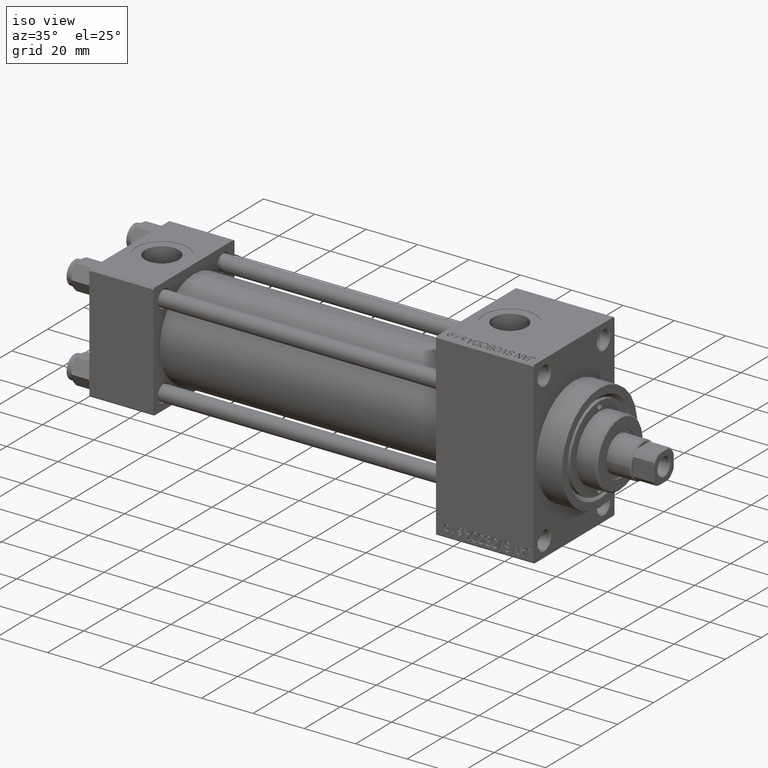
[diagram: clean part render]
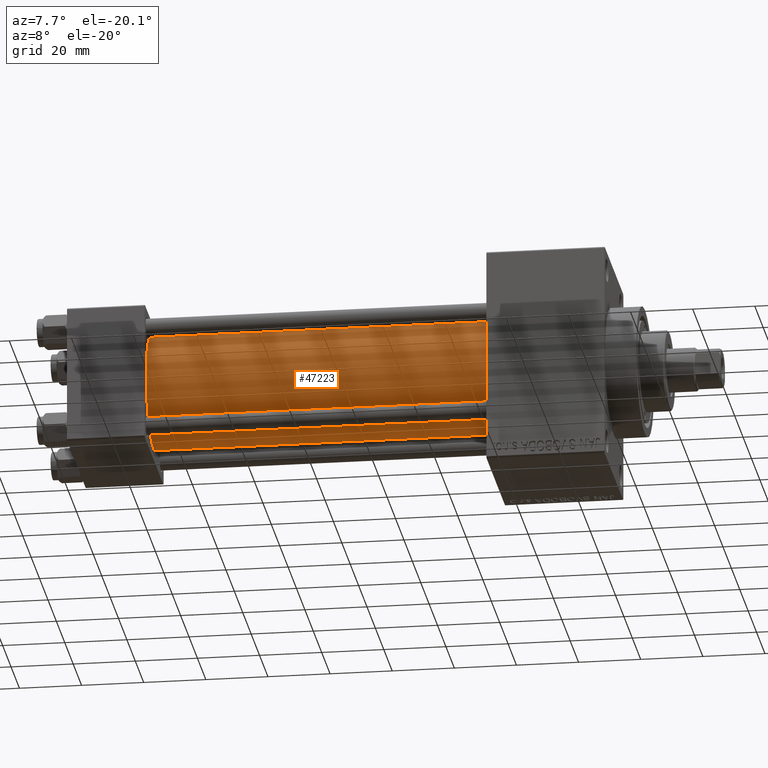
[diagram: tour spotlight — one face highlighted and labeled with its STEP entity id]
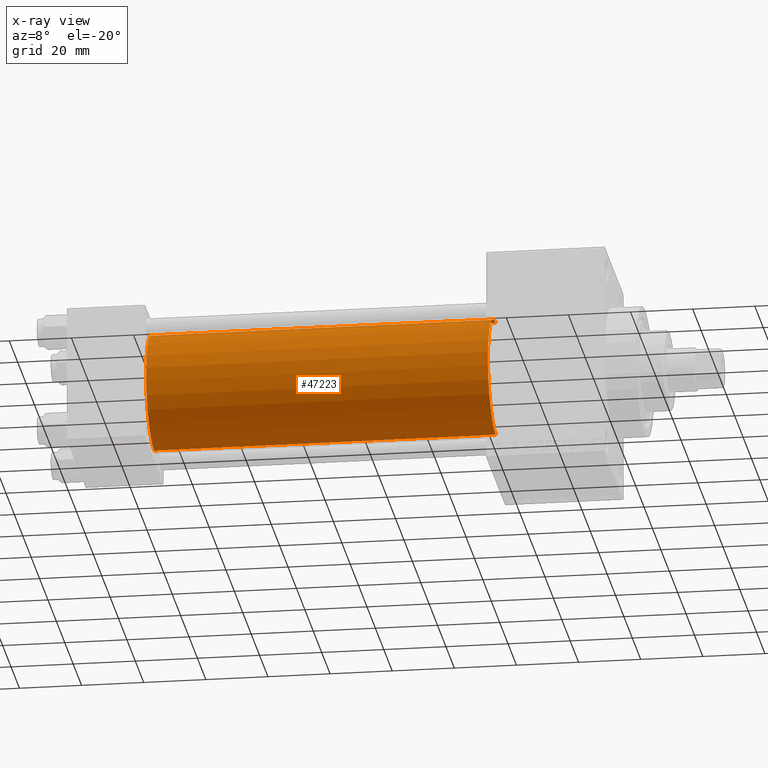
[diagram: x-ray of the same camera — body ghosted, this tour face saturated]
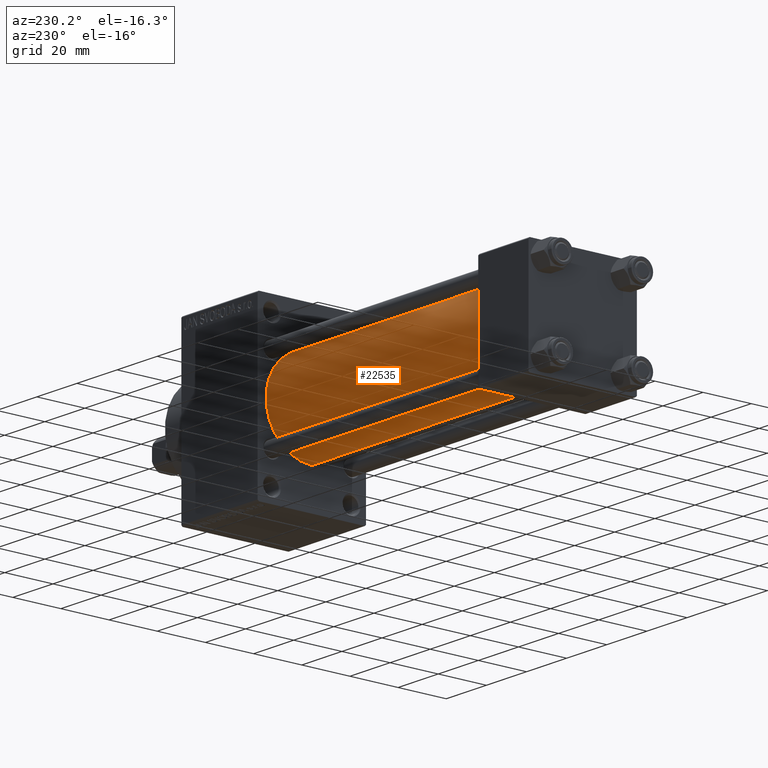
[diagram: tour spotlight — one face highlighted and labeled with its STEP entity id]
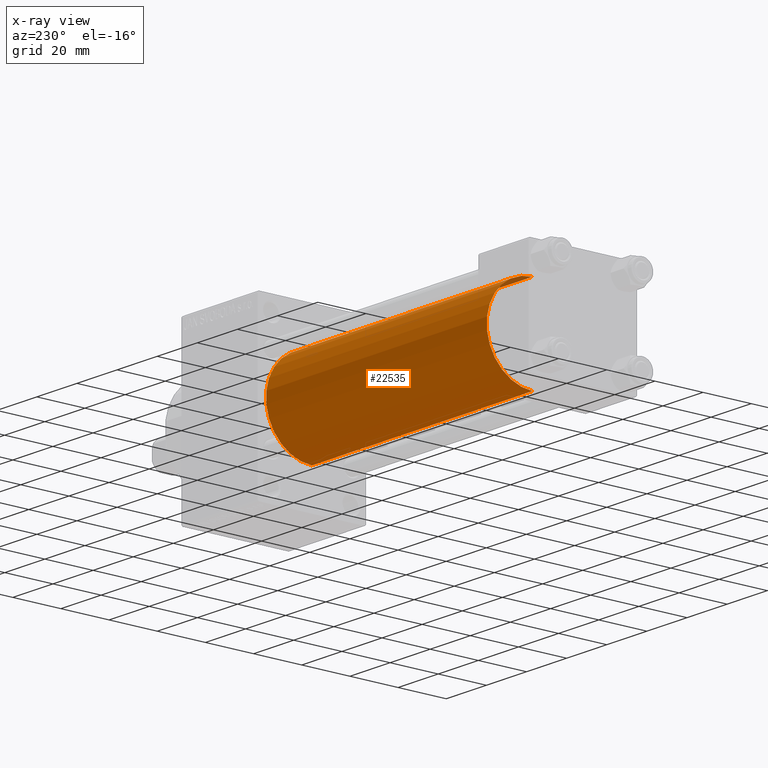
[diagram: x-ray of the same camera — body ghosted, this tour face saturated]
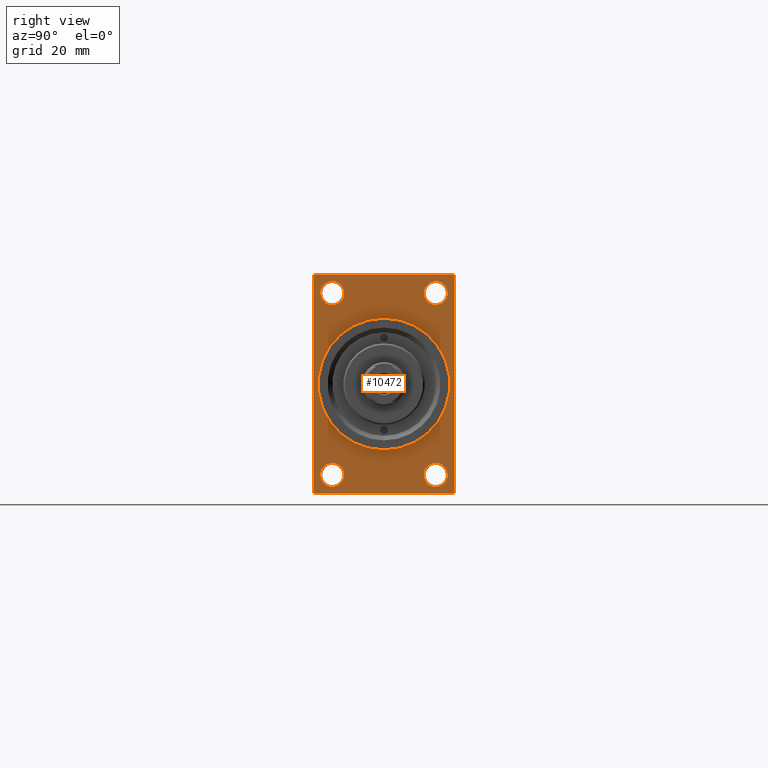
[diagram: tour spotlight — one face highlighted and labeled with its STEP entity id]
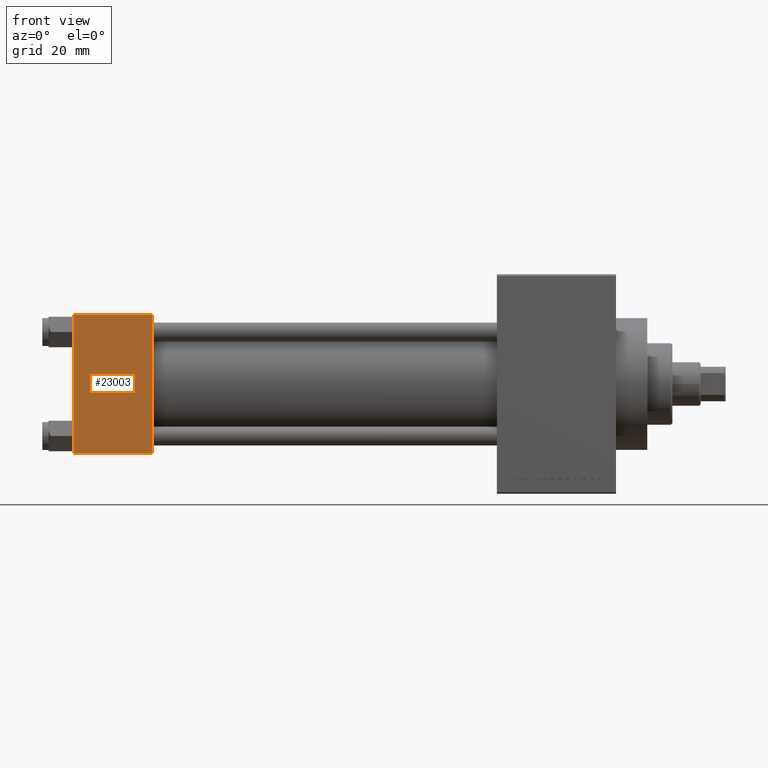
[diagram: tour spotlight — one face highlighted and labeled with its STEP entity id]
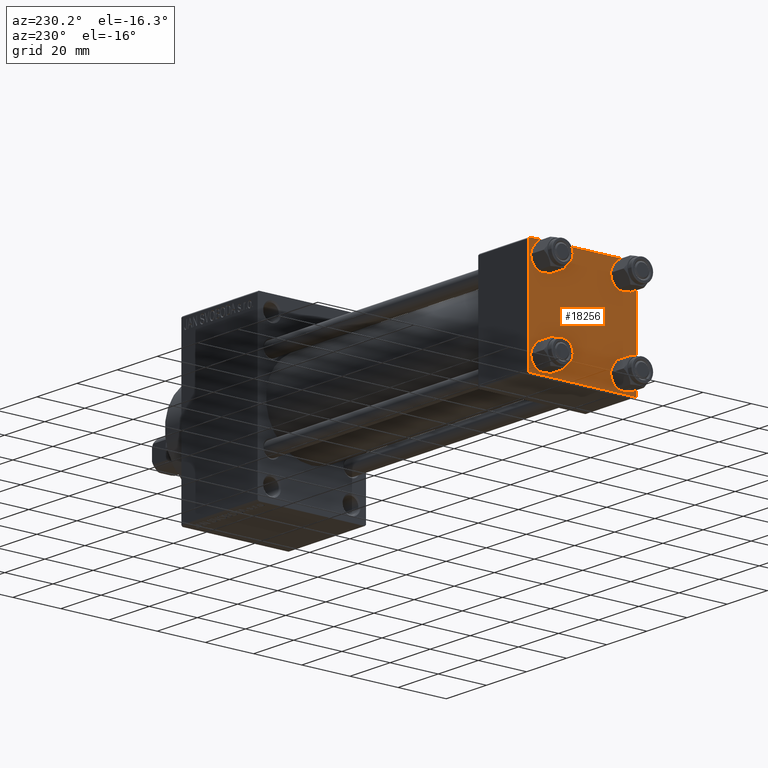
[diagram: tour spotlight — one face highlighted and labeled with its STEP entity id]
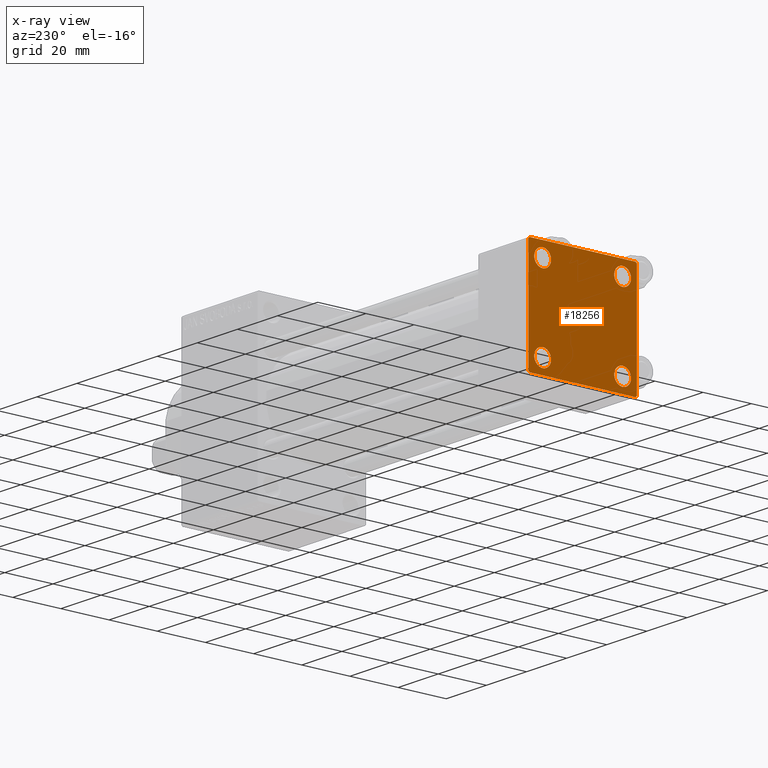
[diagram: x-ray of the same camera — body ghosted, this tour face saturated]
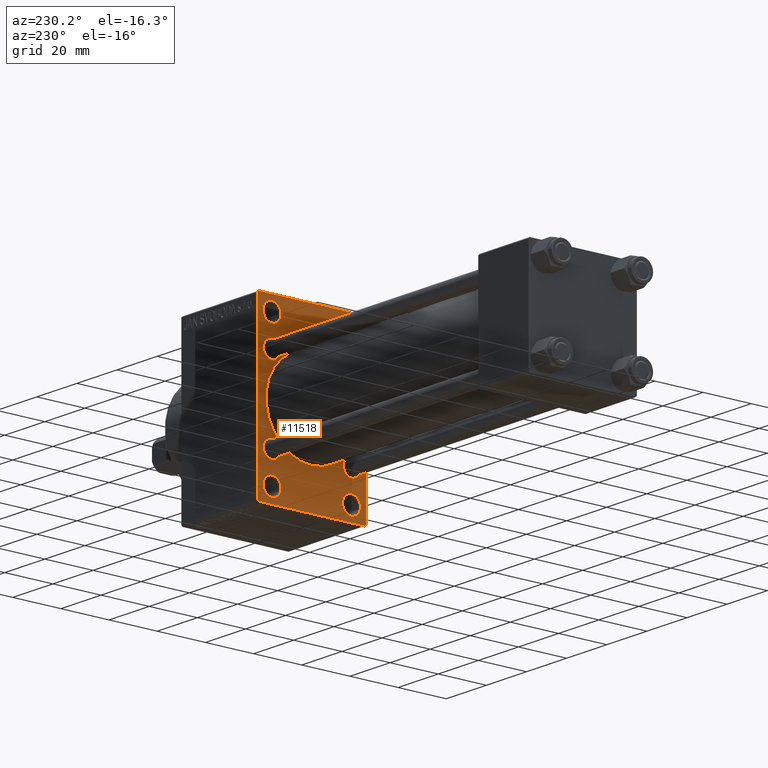
[diagram: tour spotlight — one face highlighted and labeled with its STEP entity id]
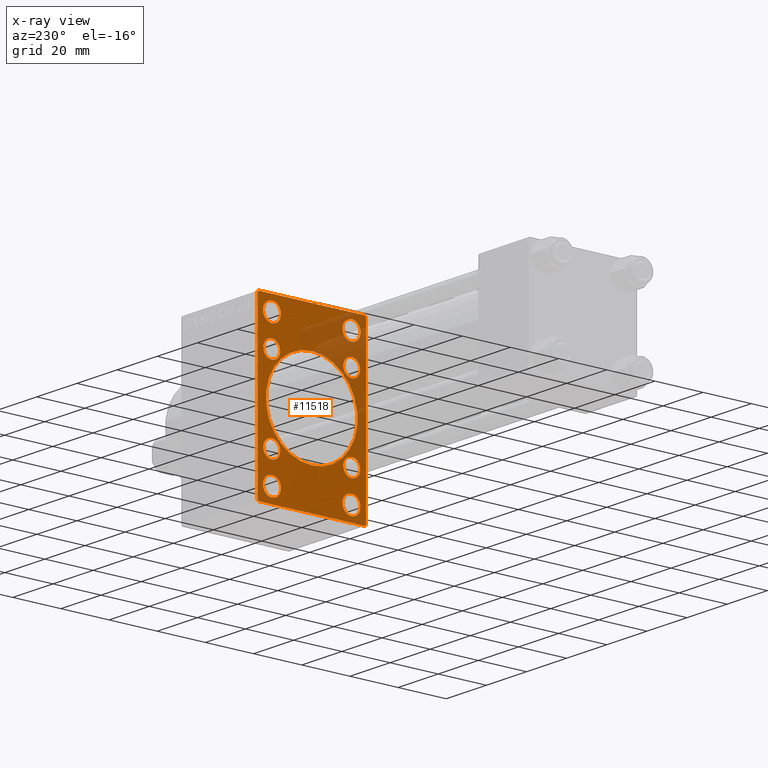
[diagram: x-ray of the same camera — body ghosted, this tour face saturated]
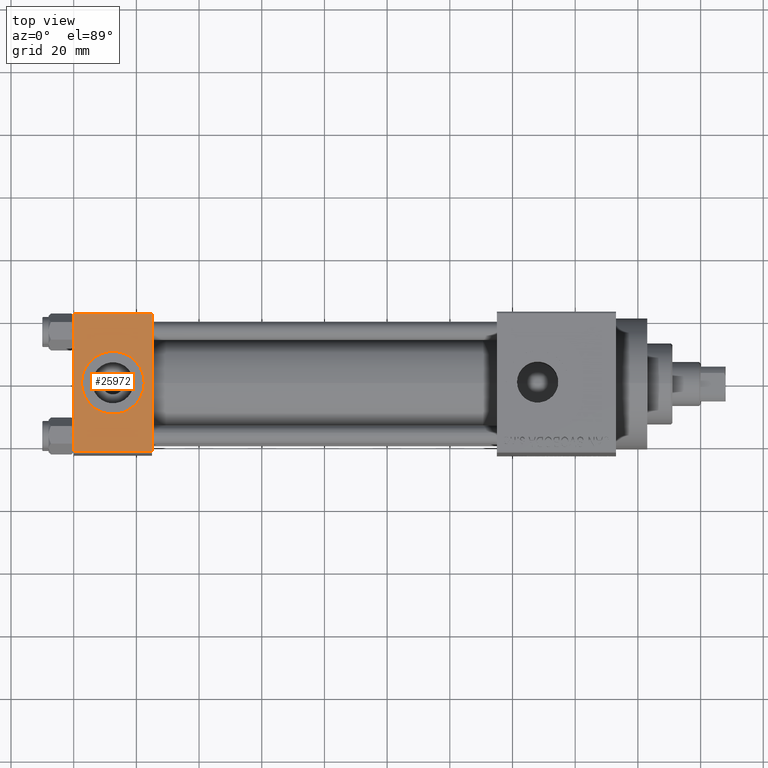
[diagram: tour spotlight — one face highlighted and labeled with its STEP entity id]
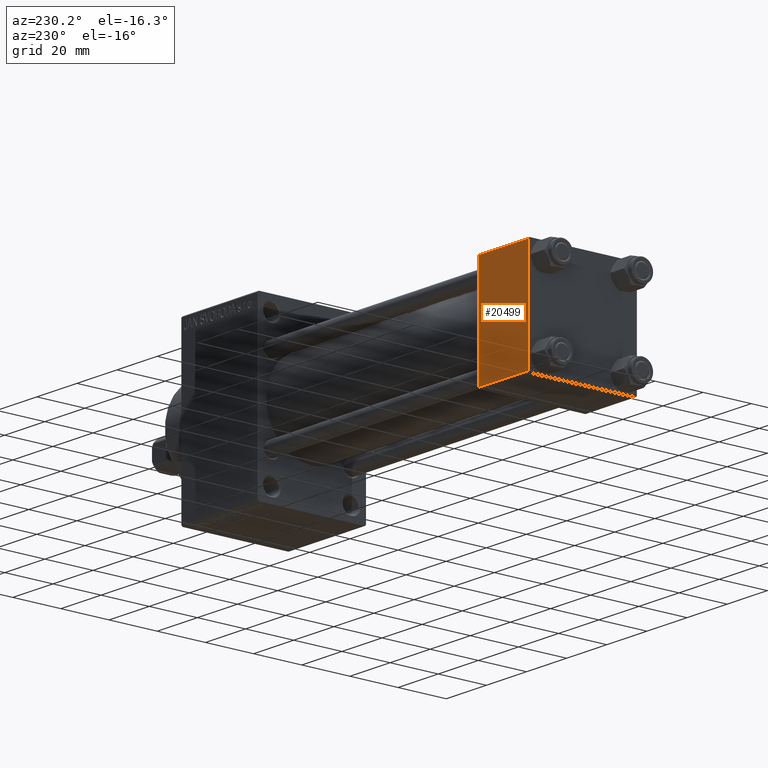
[diagram: tour spotlight — one face highlighted and labeled with its STEP entity id]
A machine part: a face-by-face anatomy tour. The part has 1110 B-rep faces; the first image is the clean iso view, then the 8 largest visible faces are spotlighted one at a time (largest first), each with its STEP entity span.

Face 1 — auxiliary view, entity #47223. An x-ray twin of the same camera follows (body ghosted, this face saturated) — the face is partly hidden behind the body. In plain terms, the highlighted cylindrical surface (partial cylindrical patch) has radius 19 mm, axis along (-1, -0, -0).
Definition (entity closure, byte-faithful):
#377 = DIRECTION ( 'NONE',  ( 0.000000000000000000, 0.000000000000000000, 1.000000000000000000 ) ) ;
#553 = EDGE_CURVE ( 'NONE', #25714, #15359, #28775, .T. ) ;
#981 = AXIS2_PLACEMENT_3D ( 'NONE', #36520, #11377, #377 ) ;
#2834 = AXIS2_PLACEMENT_3D ( 'NONE', #9725, #9019, #12603 ) ;
#4597 = ORIENTED_EDGE ( 'NONE', *, *, #46543, .T. ) ;
#4656 = EDGE_LOOP ( 'NONE', ( #44361, #15595, #4597, #11418 ) ) ;
#4659 = EDGE_CURVE ( 'NONE', #8411, #15359, #20015, .T. ) ;
#5628 = LINE ( 'NONE', #45837, #21623 ) ;
#6523 = CARTESIAN_POINT ( 'NONE',  ( 135.0000000000000000, -2.602085213965210642E-15, 19.00000000000000000 ) ) ;
#8411 = VERTEX_POINT ( 'NONE', #23041 ) ;
#9019 = DIRECTION ( 'NONE',  ( 1.000000000000000000, -0.000000000000000000, 0.000000000000000000 ) ) ;
#9671 = DIRECTION ( 'NONE',  ( -1.000000000000000000, -0.000000000000000000, -0.000000000000000000 ) ) ;
#9725 = CARTESIAN_POINT ( 'NONE',  ( 24.99999999999999289, -2.602085213965210642E-15, 0.000000000000000000 ) ) ;
#9733 = CARTESIAN_POINT ( 'NONE',  ( 135.0000000000000000, -2.752562955852396712E-16, -19.00000000000000000 ) ) ;
#9811 = VECTOR ( 'NONE', #46362, 1000.000000000000000 ) ;
#9849 = CARTESIAN_POINT ( 'NONE',  ( 24.99999999999999289, -2.752562955852396712E-16, -19.00000000000000000 ) ) ;
#11377 = DIRECTION ( 'NONE',  ( -1.000000000000000000, -0.000000000000000000, -0.000000000000000000 ) ) ;
#11418 = ORIENTED_EDGE ( 'NONE', *, *, #553, .T. ) ;
#12603 = DIRECTION ( 'NONE',  ( 0.000000000000000000, 0.000000000000000000, 1.000000000000000000 ) ) ;
#15359 = VERTEX_POINT ( 'NONE', #9849 ) ;
#15595 = ORIENTED_EDGE ( 'NONE', *, *, #21927, .F. ) ;
#19546 = CARTESIAN_POINT ( 'NONE',  ( 135.0000000000000000, -2.602085213965210642E-15, 0.000000000000000000 ) ) ;
#20015 = LINE ( 'NONE', #9733, #9811 ) ;
#21623 = VECTOR ( 'NONE', #9671, 1000.000000000000000 ) ;
#21927 = EDGE_CURVE ( 'NONE', #33360, #8411, #24592, .T. ) ;
#22138 = FACE_OUTER_BOUND ( 'NONE', #4656, .T. ) ;
#23041 = CARTESIAN_POINT ( 'NONE',  ( 135.0000000000000000, -2.752562955852396712E-16, -19.00000000000000000 ) ) ;
#24592 = CIRCLE ( 'NONE', #29921, 19.00000000000000000 ) ;
#25714 = VERTEX_POINT ( 'NONE', #40575 ) ;
#28775 = CIRCLE ( 'NONE', #2834, 19.00000000000000000 ) ;
#29921 = AXIS2_PLACEMENT_3D ( 'NONE', #19546, #34874, #41807 ) ;
#32924 = CYLINDRICAL_SURFACE ( 'NONE', #981, 19.00000000000000000 ) ;
#33360 = VERTEX_POINT ( 'NONE', #6523 ) ;
#34874 = DIRECTION ( 'NONE',  ( 1.000000000000000000, 0.000000000000000000, 0.000000000000000000 ) ) ;
#36520 = CARTESIAN_POINT ( 'NONE',  ( 135.0000000000000000, -2.602085213965210642E-15, 0.000000000000000000 ) ) ;
#40575 = CARTESIAN_POINT ( 'NONE',  ( 24.99999999999999289, -2.602085213965210642E-15, 19.00000000000000000 ) ) ;
#41807 = DIRECTION ( 'NONE',  ( 0.000000000000000000, 0.000000000000000000, -1.000000000000000000 ) ) ;
#44361 = ORIENTED_EDGE ( 'NONE', *, *, #4659, .F. ) ;
#45837 = CARTESIAN_POINT ( 'NONE',  ( 135.0000000000000000, -2.602085213965210642E-15, 19.00000000000000000 ) ) ;
#46362 = DIRECTION ( 'NONE',  ( -1.000000000000000000, -0.000000000000000000, -0.000000000000000000 ) ) ;
#46543 = EDGE_CURVE ( 'NONE', #33360, #25714, #5628, .T. ) ;
#47223 = ADVANCED_FACE ( 'NONE', ( #22138 ), #32924, .T. ) ;

Face 2 — auxiliary view, entity #22535. An x-ray twin of the same camera follows (body ghosted, this face saturated) — the face is partly hidden behind the body. In plain terms, the highlighted cylindrical surface (partial cylindrical patch) has radius 19 mm, axis along (-1, -0, -0).
Definition (entity closure, byte-faithful):
#1132 = EDGE_LOOP ( 'NONE', ( #39703, #5593, #2064, #34986 ) ) ;
#1351 = DIRECTION ( 'NONE',  ( 0.000000000000000000, 0.000000000000000000, -1.000000000000000000 ) ) ;
#2064 = ORIENTED_EDGE ( 'NONE', *, *, #10704, .T. ) ;
#4659 = EDGE_CURVE ( 'NONE', #8411, #15359, #20015, .T. ) ;
#4668 = CIRCLE ( 'NONE', #31405, 19.00000000000000000 ) ;
#5593 = ORIENTED_EDGE ( 'NONE', *, *, #4659, .T. ) ;
#5628 = LINE ( 'NONE', #45837, #21623 ) ;
#6523 = CARTESIAN_POINT ( 'NONE',  ( 135.0000000000000000, -2.602085213965210642E-15, 19.00000000000000000 ) ) ;
#7453 = FACE_OUTER_BOUND ( 'NONE', #1132, .T. ) ;
#7913 = CARTESIAN_POINT ( 'NONE',  ( 135.0000000000000000, -2.602085213965210642E-15, 0.000000000000000000 ) ) ;
#8071 = EDGE_CURVE ( 'NONE', #8411, #33360, #4668, .T. ) ;
#8308 = DIRECTION ( 'NONE',  ( 0.000000000000000000, 0.000000000000000000, 1.000000000000000000 ) ) ;
#8411 = VERTEX_POINT ( 'NONE', #23041 ) ;
#9671 = DIRECTION ( 'NONE',  ( -1.000000000000000000, -0.000000000000000000, -0.000000000000000000 ) ) ;
#9733 = CARTESIAN_POINT ( 'NONE',  ( 135.0000000000000000, -2.752562955852396712E-16, -19.00000000000000000 ) ) ;
#9811 = VECTOR ( 'NONE', #46362, 1000.000000000000000 ) ;
#9849 = CARTESIAN_POINT ( 'NONE',  ( 24.99999999999999289, -2.752562955852396712E-16, -19.00000000000000000 ) ) ;
#10704 = EDGE_CURVE ( 'NONE', #15359, #25714, #27111, .T. ) ;
#12822 = DIRECTION ( 'NONE',  ( 1.000000000000000000, 0.000000000000000000, 0.000000000000000000 ) ) ;
#15359 = VERTEX_POINT ( 'NONE', #9849 ) ;
#19262 = AXIS2_PLACEMENT_3D ( 'NONE', #7913, #22724, #37326 ) ;
#20015 = LINE ( 'NONE', #9733, #9811 ) ;
#21623 = VECTOR ( 'NONE', #9671, 1000.000000000000000 ) ;
#22535 = ADVANCED_FACE ( 'NONE', ( #7453 ), #40669, .T. ) ;
#22724 = DIRECTION ( 'NONE',  ( -1.000000000000000000, -0.000000000000000000, -0.000000000000000000 ) ) ;
#23041 = CARTESIAN_POINT ( 'NONE',  ( 135.0000000000000000, -2.752562955852396712E-16, -19.00000000000000000 ) ) ;
#25714 = VERTEX_POINT ( 'NONE', #40575 ) ;
#27111 = CIRCLE ( 'NONE', #40826, 19.00000000000000000 ) ;
#31405 = AXIS2_PLACEMENT_3D ( 'NONE', #34121, #12822, #1351 ) ;
#33360 = VERTEX_POINT ( 'NONE', #6523 ) ;
#34121 = CARTESIAN_POINT ( 'NONE',  ( 135.0000000000000000, -2.602085213965210642E-15, 0.000000000000000000 ) ) ;
#34986 = ORIENTED_EDGE ( 'NONE', *, *, #46543, .F. ) ;
#37326 = DIRECTION ( 'NONE',  ( 0.000000000000000000, 0.000000000000000000, 1.000000000000000000 ) ) ;
#39703 = ORIENTED_EDGE ( 'NONE', *, *, #8071, .F. ) ;
#40575 = CARTESIAN_POINT ( 'NONE',  ( 24.99999999999999289, -2.602085213965210642E-15, 19.00000000000000000 ) ) ;
#40669 = CYLINDRICAL_SURFACE ( 'NONE', #19262, 19.00000000000000000 ) ;
#40826 = AXIS2_PLACEMENT_3D ( 'NONE', #40842, #41077, #8308 ) ;
#40842 = CARTESIAN_POINT ( 'NONE',  ( 24.99999999999999289, -2.602085213965210642E-15, 0.000000000000000000 ) ) ;
#41077 = DIRECTION ( 'NONE',  ( 1.000000000000000000, -0.000000000000000000, 0.000000000000000000 ) ) ;
#45837 = CARTESIAN_POINT ( 'NONE',  ( 135.0000000000000000, -2.602085213965210642E-15, 19.00000000000000000 ) ) ;
#46362 = DIRECTION ( 'NONE',  ( -1.000000000000000000, -0.000000000000000000, -0.000000000000000000 ) ) ;
#46543 = EDGE_CURVE ( 'NONE', #33360, #25714, #5628, .T. ) ;

Face 3 — right view, entity #10472. In plain terms, the highlighted planar face has unit normal (-1, 0, 0).
Definition (entity closure, byte-faithful):
#52 = VERTEX_POINT ( 'NONE', #42131 ) ;
#72 = FACE_BOUND ( 'NONE', #10414, .T. ) ;
#186 = DIRECTION ( 'NONE',  ( 0.000000000000000000, 0.000000000000000000, 1.000000000000000000 ) ) ;
#1205 = VERTEX_POINT ( 'NONE', #13611 ) ;
#1632 = EDGE_CURVE ( 'NONE', #34541, #6042, #10199, .T. ) ;
#1957 = LINE ( 'NONE', #39010, #27258 ) ;
#1981 = CARTESIAN_POINT ( 'NONE',  ( 173.0000000000000284, 22.49999999999999645, 34.50000000000000000 ) ) ;
#2444 = CIRCLE ( 'NONE', #29186, 3.750000000000166533 ) ;
#2687 = CIRCLE ( 'NONE', #43201, 3.750000000000169642 ) ;
#3012 = LINE ( 'NONE', #10410, #29998 ) ;
#3381 = CARTESIAN_POINT ( 'NONE',  ( 173.0000000000000284, -16.50000000000000000, -28.99999999999999289 ) ) ;
#3447 = DIRECTION ( 'NONE',  ( 0.000000000000000000, 0.000000000000000000, 1.000000000000000000 ) ) ;
#3868 = ORIENTED_EDGE ( 'NONE', *, *, #41052, .F. ) ;
#4632 = EDGE_LOOP ( 'NONE', ( #25608, #14124, #36094, #29701, #3868, #19329, #41639, #20376 ) ) ;
#5058 = VERTEX_POINT ( 'NONE', #34659 ) ;
#5405 = VERTEX_POINT ( 'NONE', #31467 ) ;
#6042 = VERTEX_POINT ( 'NONE', #44435 ) ;
#6065 = LINE ( 'NONE', #28071, #33330 ) ;
#7577 = EDGE_CURVE ( 'NONE', #21572, #45087, #13825, .T. ) ;
#7726 = EDGE_LOOP ( 'NONE', ( #27522, #18431 ) ) ;
#7896 = DIRECTION ( 'NONE',  ( -1.000000000000000000, -0.000000000000000000, -0.000000000000000000 ) ) ;
#8111 = DIRECTION ( 'NONE',  ( 0.000000000000000000, 0.000000000000000000, 1.000000000000000000 ) ) ;
#8777 = EDGE_CURVE ( 'NONE', #1205, #33629, #36205, .T. ) ;
#9511 = ORIENTED_EDGE ( 'NONE', *, *, #15912, .T. ) ;
#9577 = CIRCLE ( 'NONE', #42448, 3.750000000000169642 ) ;
#10095 = DIRECTION ( 'NONE',  ( 0.000000000000000000, -1.000000000000000000, 0.000000000000000000 ) ) ;
#10199 = LINE ( 'NONE', #24815, #18884 ) ;
#10410 = CARTESIAN_POINT ( 'NONE',  ( 173.0000000000000284, -22.00000000000000355, -35.00000000000000000 ) ) ;
#10414 = EDGE_LOOP ( 'NONE', ( #38992, #13417 ) ) ;
#10472 = ADVANCED_FACE ( 'NONE', ( #40714, #72, #40483, #14652, #29255, #37135 ), #40257, .F. ) ;
#10511 = DIRECTION ( 'NONE',  ( 0.000000000000000000, 0.000000000000000000, -1.000000000000000000 ) ) ;
#10830 = CARTESIAN_POINT ( 'NONE',  ( 173.0000000000000284, -16.50000000000000000, 29.00000000000000711 ) ) ;
#10965 = AXIS2_PLACEMENT_3D ( 'NONE', #10830, #42919, #3447 ) ;
#11181 = CARTESIAN_POINT ( 'NONE',  ( 173.0000000000000284, 16.50000000000000000, -28.99999999999999289 ) ) ;
#12164 = CARTESIAN_POINT ( 'NONE',  ( 173.0000000000000284, -16.50000000000000000, -28.99999999999999289 ) ) ;
#12205 = CARTESIAN_POINT ( 'NONE',  ( 173.0000000000000284, 16.50000000000000000, -25.24999999999982592 ) ) ;
#13417 = ORIENTED_EDGE ( 'NONE', *, *, #7577, .T. ) ;
#13611 = CARTESIAN_POINT ( 'NONE',  ( 173.0000000000000284, 16.50000000000000000, -32.75000000000017053 ) ) ;
#13825 = CIRCLE ( 'NONE', #22993, 3.750000000000166533 ) ;
#13916 = VECTOR ( 'NONE', #46966, 1000.000000000000000 ) ;
#14027 = DIRECTION ( 'NONE',  ( 1.000000000000000000, 0.000000000000000000, 0.000000000000000000 ) ) ;
#14124 = ORIENTED_EDGE ( 'NONE', *, *, #20896, .T. ) ;
#14570 = CARTESIAN_POINT ( 'NONE',  ( 173.0000000000000284, 0.000000000000000000, 0.000000000000000000 ) ) ;
#14652 = FACE_BOUND ( 'NONE', #23801, .T. ) ;
#14947 = CIRCLE ( 'NONE', #28040, 21.00000000000000000 ) ;
#15350 = DIRECTION ( 'NONE',  ( -1.000000000000000000, 0.000000000000000000, -0.000000000000000000 ) ) ;
#15912 = EDGE_CURVE ( 'NONE', #5405, #46813, #2687, .T. ) ;
#16944 = EDGE_CURVE ( 'NONE', #46813, #5405, #9577, .T. ) ;
#17005 = CIRCLE ( 'NONE', #42986, 3.750000000000166533 ) ;
#17907 = DIRECTION ( 'NONE',  ( 0.000000000000000000, 0.000000000000000000, 1.000000000000000000 ) ) ;
#18170 = EDGE_CURVE ( 'NONE', #30398, #27129, #1957, .T. ) ;
#18195 = CARTESIAN_POINT ( 'NONE',  ( 173.0000000000000284, -16.50000000000000000, -25.24999999999982592 ) ) ;
#18431 = ORIENTED_EDGE ( 'NONE', *, *, #45172, .T. ) ;
#18454 = CARTESIAN_POINT ( 'NONE',  ( 173.0000000000000284, 16.50000000000000000, 29.00000000000000355 ) ) ;
#18474 = CARTESIAN_POINT ( 'NONE',  ( 173.0000000000000284, 0.000000000000000000, 0.000000000000000000 ) ) ;
#18884 = VECTOR ( 'NONE', #39388, 1000.000000000000000 ) ;
#19127 = EDGE_CURVE ( 'NONE', #27129, #28054, #39749, .T. ) ;
#19329 = ORIENTED_EDGE ( 'NONE', *, *, #18170, .T. ) ;
#19330 = DIRECTION ( 'NONE',  ( -1.000000000000000000, -0.000000000000000000, -0.000000000000000000 ) ) ;
#20146 = VERTEX_POINT ( 'NONE', #27309 ) ;
#20376 = ORIENTED_EDGE ( 'NONE', *, *, #25750, .T. ) ;
#20896 = EDGE_CURVE ( 'NONE', #6042, #36266, #3012, .T. ) ;
#20962 = VERTEX_POINT ( 'NONE', #36946 ) ;
#21382 = EDGE_CURVE ( 'NONE', #33629, #1205, #2444, .T. ) ;
#21507 = CARTESIAN_POINT ( 'NONE',  ( 173.0000000000000284, -22.00000000000001776, 35.00000000000000000 ) ) ;
#21572 = VERTEX_POINT ( 'NONE', #18195 ) ;
#22746 = CARTESIAN_POINT ( 'NONE',  ( 173.0000000000000284, 16.50000000000000000, -28.99999999999999289 ) ) ;
#22993 = AXIS2_PLACEMENT_3D ( 'NONE', #12164, #19330, #8111 ) ;
#23789 = EDGE_LOOP ( 'NONE', ( #34239, #28240 ) ) ;
#23801 = EDGE_LOOP ( 'NONE', ( #29543, #9511 ) ) ;
#24241 = CARTESIAN_POINT ( 'NONE',  ( 173.0000000000000284, 22.49999999999999645, -34.50000000000000000 ) ) ;
#24815 = CARTESIAN_POINT ( 'NONE',  ( 173.0000000000000284, -22.50000000000000355, 35.00000000000000000 ) ) ;
#24878 = CARTESIAN_POINT ( 'NONE',  ( 173.0000000000000284, -16.50000000000000000, 29.00000000000000711 ) ) ;
#25389 = EDGE_CURVE ( 'NONE', #52, #31173, #14947, .T. ) ;
#25555 = LINE ( 'NONE', #44209, #36823 ) ;
#25608 = ORIENTED_EDGE ( 'NONE', *, *, #1632, .T. ) ;
#25750 = EDGE_CURVE ( 'NONE', #28054, #34541, #44424, .T. ) ;
#26336 = EDGE_CURVE ( 'NONE', #20962, #36266, #6065, .T. ) ;
#27129 = VERTEX_POINT ( 'NONE', #44852 ) ;
#27258 = VECTOR ( 'NONE', #27789, 1000.000000000000114 ) ;
#27309 = CARTESIAN_POINT ( 'NONE',  ( 173.0000000000000284, -16.50000000000000000, 25.24999999999984368 ) ) ;
#27522 = ORIENTED_EDGE ( 'NONE', *, *, #37852, .T. ) ;
#27768 = CARTESIAN_POINT ( 'NONE',  ( 173.0000000000000284, 16.50000000000000000, 29.00000000000000355 ) ) ;
#27789 = DIRECTION ( 'NONE',  ( 0.000000000000000000, -0.7071067811865474617, 0.7071067811865474617 ) ) ;
#28040 = AXIS2_PLACEMENT_3D ( 'NONE', #14570, #43539, #10511 ) ;
#28054 = VERTEX_POINT ( 'NONE', #21507 ) ;
#28071 = CARTESIAN_POINT ( 'NONE',  ( 173.0000000000000284, 22.49999999999999645, -35.00000000000000000 ) ) ;
#28240 = ORIENTED_EDGE ( 'NONE', *, *, #25389, .F. ) ;
#28432 = DIRECTION ( 'NONE',  ( -0.000000000000000000, 0.7071067811865279218, 0.7071067811865671127 ) ) ;
#28705 = ORIENTED_EDGE ( 'NONE', *, *, #8777, .T. ) ;
#29186 = AXIS2_PLACEMENT_3D ( 'NONE', #11181, #43983, #186 ) ;
#29255 = FACE_BOUND ( 'NONE', #23789, .T. ) ;
#29543 = ORIENTED_EDGE ( 'NONE', *, *, #16944, .T. ) ;
#29591 = VERTEX_POINT ( 'NONE', #24241 ) ;
#29656 = EDGE_LOOP ( 'NONE', ( #28705, #38344 ) ) ;
#29701 = ORIENTED_EDGE ( 'NONE', *, *, #43626, .T. ) ;
#29998 = VECTOR ( 'NONE', #47053, 1000.000000000000114 ) ;
#30169 = DIRECTION ( 'NONE',  ( 0.000000000000000000, 0.000000000000000000, 1.000000000000000000 ) ) ;
#30398 = VERTEX_POINT ( 'NONE', #1981 ) ;
#31173 = VERTEX_POINT ( 'NONE', #40737 ) ;
#31467 = CARTESIAN_POINT ( 'NONE',  ( 173.0000000000000284, 16.50000000000000000, 32.75000000000017764 ) ) ;
#31685 = AXIS2_PLACEMENT_3D ( 'NONE', #18474, #15350, #40954 ) ;
#31972 = CARTESIAN_POINT ( 'NONE',  ( 173.0000000000000284, -21.99999999999998934, -35.00000000000000000 ) ) ;
#32061 = DIRECTION ( 'NONE',  ( 0.000000000000000000, 0.000000000000000000, 1.000000000000000000 ) ) ;
#32105 = CARTESIAN_POINT ( 'NONE',  ( 173.0000000000000284, 22.49999999999999645, 35.00000000000000000 ) ) ;
#32347 = CARTESIAN_POINT ( 'NONE',  ( 173.0000000000000284, -22.50000000000000355, 34.50000000000000000 ) ) ;
#32605 = DIRECTION ( 'NONE',  ( 0.000000000000000000, 0.000000000000000000, 1.000000000000000000 ) ) ;
#33109 = VECTOR ( 'NONE', #28432, 1000.000000000000000 ) ;
#33330 = VECTOR ( 'NONE', #10095, 1000.000000000000000 ) ;
#33629 = VERTEX_POINT ( 'NONE', #12205 ) ;
#33646 = DIRECTION ( 'NONE',  ( -0.000000000000000000, -0.7071067811865279218, -0.7071067811865671127 ) ) ;
#33718 = DIRECTION ( 'NONE',  ( 0.000000000000000000, 0.000000000000000000, 1.000000000000000000 ) ) ;
#34239 = ORIENTED_EDGE ( 'NONE', *, *, #47147, .F. ) ;
#34541 = VERTEX_POINT ( 'NONE', #32347 ) ;
#34659 = CARTESIAN_POINT ( 'NONE',  ( 173.0000000000000284, -16.50000000000000000, 32.75000000000017764 ) ) ;
#34918 = AXIS2_PLACEMENT_3D ( 'NONE', #24878, #46427, #17907 ) ;
#35270 = CARTESIAN_POINT ( 'NONE',  ( 173.0000000000000284, -16.50000000000000000, -32.75000000000017053 ) ) ;
#36094 = ORIENTED_EDGE ( 'NONE', *, *, #26336, .F. ) ;
#36197 = DIRECTION ( 'NONE',  ( -1.000000000000000000, -0.000000000000000000, -0.000000000000000000 ) ) ;
#36205 = CIRCLE ( 'NONE', #46911, 3.750000000000166533 ) ;
#36266 = VERTEX_POINT ( 'NONE', #31972 ) ;
#36823 = VECTOR ( 'NONE', #43978, 1000.000000000000000 ) ;
#36946 = CARTESIAN_POINT ( 'NONE',  ( 173.0000000000000284, 22.00000000000002132, -35.00000000000000000 ) ) ;
#36998 = CARTESIAN_POINT ( 'NONE',  ( 173.0000000000000284, -22.50000000000000355, 34.50000000000000000 ) ) ;
#37135 = FACE_OUTER_BOUND ( 'NONE', #4632, .T. ) ;
#37852 = EDGE_CURVE ( 'NONE', #20146, #5058, #41801, .T. ) ;
#38344 = ORIENTED_EDGE ( 'NONE', *, *, #21382, .T. ) ;
#38992 = ORIENTED_EDGE ( 'NONE', *, *, #42471, .T. ) ;
#39010 = CARTESIAN_POINT ( 'NONE',  ( 173.0000000000000284, 21.99999999999999645, 35.00000000000000000 ) ) ;
#39179 = AXIS2_PLACEMENT_3D ( 'NONE', #39630, #14027, #43231 ) ;
#39388 = DIRECTION ( 'NONE',  ( 0.000000000000000000, 0.000000000000000000, -1.000000000000000000 ) ) ;
#39630 = CARTESIAN_POINT ( 'NONE',  ( 173.0000000000000284, 0.000000000000000000, 0.000000000000000000 ) ) ;
#39749 = LINE ( 'NONE', #32105, #13916 ) ;
#39905 = CARTESIAN_POINT ( 'NONE',  ( 173.0000000000000284, 22.49999999999999645, -34.50000000000000000 ) ) ;
#40257 = PLANE ( 'NONE',  #31685 ) ;
#40483 = FACE_BOUND ( 'NONE', #29656, .T. ) ;
#40714 = FACE_BOUND ( 'NONE', #7726, .T. ) ;
#40737 = CARTESIAN_POINT ( 'NONE',  ( 173.0000000000000284, 0.000000000000000000, 21.00000000000000000 ) ) ;
#40954 = DIRECTION ( 'NONE',  ( -0.000000000000000000, 0.000000000000000000, 1.000000000000000000 ) ) ;
#41052 = EDGE_CURVE ( 'NONE', #30398, #29591, #25555, .T. ) ;
#41530 = CIRCLE ( 'NONE', #10965, 3.750000000000166533 ) ;
#41639 = ORIENTED_EDGE ( 'NONE', *, *, #19127, .T. ) ;
#41801 = CIRCLE ( 'NONE', #34918, 3.750000000000166533 ) ;
#42131 = CARTESIAN_POINT ( 'NONE',  ( 173.0000000000000284, 2.571758278209441661E-15, -21.00000000000000000 ) ) ;
#42448 = AXIS2_PLACEMENT_3D ( 'NONE', #18454, #36197, #32605 ) ;
#42471 = EDGE_CURVE ( 'NONE', #45087, #21572, #17005, .T. ) ;
#42919 = DIRECTION ( 'NONE',  ( -1.000000000000000000, -0.000000000000000000, -0.000000000000000000 ) ) ;
#42986 = AXIS2_PLACEMENT_3D ( 'NONE', #3381, #7896, #33718 ) ;
#43073 = DIRECTION ( 'NONE',  ( -1.000000000000000000, -0.000000000000000000, -0.000000000000000000 ) ) ;
#43201 = AXIS2_PLACEMENT_3D ( 'NONE', #27768, #43073, #32061 ) ;
#43231 = DIRECTION ( 'NONE',  ( 0.000000000000000000, 0.000000000000000000, -1.000000000000000000 ) ) ;
#43539 = DIRECTION ( 'NONE',  ( 1.000000000000000000, 0.000000000000000000, 0.000000000000000000 ) ) ;
#43626 = EDGE_CURVE ( 'NONE', #20962, #29591, #43747, .T. ) ;
#43747 = LINE ( 'NONE', #39905, #33109 ) ;
#43978 = DIRECTION ( 'NONE',  ( 0.000000000000000000, 0.000000000000000000, -1.000000000000000000 ) ) ;
#43983 = DIRECTION ( 'NONE',  ( -1.000000000000000000, -0.000000000000000000, -0.000000000000000000 ) ) ;
#44209 = CARTESIAN_POINT ( 'NONE',  ( 173.0000000000000284, 22.49999999999999645, 35.00000000000000000 ) ) ;
#44335 = CARTESIAN_POINT ( 'NONE',  ( 173.0000000000000284, 16.50000000000000000, 25.24999999999983658 ) ) ;
#44424 = LINE ( 'NONE', #36998, #45659 ) ;
#44435 = CARTESIAN_POINT ( 'NONE',  ( 173.0000000000000284, -22.50000000000000355, -34.50000000000000000 ) ) ;
#44852 = CARTESIAN_POINT ( 'NONE',  ( 173.0000000000000284, 21.99999999999999645, 35.00000000000000000 ) ) ;
#45087 = VERTEX_POINT ( 'NONE', #35270 ) ;
#45172 = EDGE_CURVE ( 'NONE', #5058, #20146, #41530, .T. ) ;
#45264 = DIRECTION ( 'NONE',  ( -1.000000000000000000, -0.000000000000000000, -0.000000000000000000 ) ) ;
#45659 = VECTOR ( 'NONE', #33646, 1000.000000000000000 ) ;
#46427 = DIRECTION ( 'NONE',  ( -1.000000000000000000, -0.000000000000000000, -0.000000000000000000 ) ) ;
#46813 = VERTEX_POINT ( 'NONE', #44335 ) ;
#46866 = CIRCLE ( 'NONE', #39179, 21.00000000000000000 ) ;
#46911 = AXIS2_PLACEMENT_3D ( 'NONE', #22746, #45264, #30169 ) ;
#46966 = DIRECTION ( 'NONE',  ( 0.000000000000000000, -1.000000000000000000, 0.000000000000000000 ) ) ;
#47053 = DIRECTION ( 'NONE',  ( 0.000000000000000000, 0.7071067811865474617, -0.7071067811865474617 ) ) ;
#47147 = EDGE_CURVE ( 'NONE', #31173, #52, #46866, .T. ) ;

Face 4 — front view, entity #23003. In plain terms, the highlighted planar face has unit normal (0, 1, 0).
Definition (entity closure, byte-faithful):
#6105 = EDGE_CURVE ( 'NONE', #20529, #15304, #41778, .T. ) ;
#7924 = ORIENTED_EDGE ( 'NONE', *, *, #14324, .T. ) ;
#8672 = CARTESIAN_POINT ( 'NONE',  ( 0.000000000000000000, -22.50000000000000000, 22.00000000000000000 ) ) ;
#9200 = DIRECTION ( 'NONE',  ( 0.000000000000000000, 0.000000000000000000, -1.000000000000000000 ) ) ;
#11852 = CARTESIAN_POINT ( 'NONE',  ( 25.00000000000000000, -22.50000000000000000, 22.50000000000000000 ) ) ;
#13193 = DIRECTION ( 'NONE',  ( 1.000000000000000000, 0.000000000000000000, 0.000000000000000000 ) ) ;
#13451 = CARTESIAN_POINT ( 'NONE',  ( 0.000000000000000000, -22.50000000000000000, -21.99999999999997158 ) ) ;
#13619 = CARTESIAN_POINT ( 'NONE',  ( 25.00000000000000000, -22.50000000000000000, 22.50000000000000000 ) ) ;
#14324 = EDGE_CURVE ( 'NONE', #15304, #19074, #37903, .T. ) ;
#15304 = VERTEX_POINT ( 'NONE', #8672 ) ;
#15946 = CARTESIAN_POINT ( 'NONE',  ( 25.00000000000000000, -22.50000000000000000, 22.00000000000000000 ) ) ;
#16988 = ORIENTED_EDGE ( 'NONE', *, *, #37905, .F. ) ;
#17437 = LINE ( 'NONE', #13619, #29664 ) ;
#18558 = PLANE ( 'NONE',  #28442 ) ;
#19074 = VERTEX_POINT ( 'NONE', #13451 ) ;
#20529 = VERTEX_POINT ( 'NONE', #39892 ) ;
#22147 = DIRECTION ( 'NONE',  ( -0.000000000000000000, 1.000000000000000000, 0.000000000000000000 ) ) ;
#23003 = ADVANCED_FACE ( 'NONE', ( #32933 ), #18558, .F. ) ;
#26163 = VECTOR ( 'NONE', #13193, 1000.000000000000000 ) ;
#28442 = AXIS2_PLACEMENT_3D ( 'NONE', #11852, #22147, #29101 ) ;
#28976 = VERTEX_POINT ( 'NONE', #44246 ) ;
#29101 = DIRECTION ( 'NONE',  ( 0.000000000000000000, -0.000000000000000000, 1.000000000000000000 ) ) ;
#29664 = VECTOR ( 'NONE', #39452, 1000.000000000000000 ) ;
#31142 = CARTESIAN_POINT ( 'NONE',  ( 25.00000000000000000, -22.50000000000000000, -21.99999999999998579 ) ) ;
#32130 = ORIENTED_EDGE ( 'NONE', *, *, #6105, .T. ) ;
#32933 = FACE_OUTER_BOUND ( 'NONE', #46610, .T. ) ;
#34328 = CARTESIAN_POINT ( 'NONE',  ( 0.000000000000000000, -22.50000000000000000, 22.50000000000000000 ) ) ;
#34605 = DIRECTION ( 'NONE',  ( -1.000000000000000000, 0.000000000000000000, 0.000000000000000000 ) ) ;
#35208 = LINE ( 'NONE', #31142, #26163 ) ;
#37903 = LINE ( 'NONE', #34328, #38537 ) ;
#37905 = EDGE_CURVE ( 'NONE', #20529, #28976, #17437, .T. ) ;
#38537 = VECTOR ( 'NONE', #9200, 1000.000000000000000 ) ;
#39452 = DIRECTION ( 'NONE',  ( 0.000000000000000000, 0.000000000000000000, -1.000000000000000000 ) ) ;
#39892 = CARTESIAN_POINT ( 'NONE',  ( 25.00000000000000000, -22.50000000000000000, 22.00000000000000000 ) ) ;
#41778 = LINE ( 'NONE', #15946, #45845 ) ;
#42632 = ORIENTED_EDGE ( 'NONE', *, *, #45371, .T. ) ;
#44246 = CARTESIAN_POINT ( 'NONE',  ( 25.00000000000000000, -22.50000000000000000, -21.99999999999997158 ) ) ;
#45371 = EDGE_CURVE ( 'NONE', #19074, #28976, #35208, .T. ) ;
#45845 = VECTOR ( 'NONE', #34605, 1000.000000000000000 ) ;
#46610 = EDGE_LOOP ( 'NONE', ( #7924, #42632, #16988, #32130 ) ) ;

Face 5 — auxiliary view, entity #18256. An x-ray twin of the same camera follows (body ghosted, this face saturated) — the face is partly hidden behind the body. In plain terms, the highlighted planar face has unit normal (-1, 0, 0).
Definition (entity closure, byte-faithful):
#63 = EDGE_CURVE ( 'NONE', #10447, #19074, #45526, .T. ) ;
#224 = EDGE_LOOP ( 'NONE', ( #30465, #1369 ) ) ;
#1369 = ORIENTED_EDGE ( 'NONE', *, *, #36835, .T. ) ;
#1609 = ORIENTED_EDGE ( 'NONE', *, *, #35227, .F. ) ;
#1697 = DIRECTION ( 'NONE',  ( 0.000000000000000000, 0.000000000000000000, 1.000000000000000000 ) ) ;
#1700 = ORIENTED_EDGE ( 'NONE', *, *, #36606, .T. ) ;
#2058 = CARTESIAN_POINT ( 'NONE',  ( 0.000000000000000000, 22.50000000000000000, 22.50000000000000355 ) ) ;
#2204 = CIRCLE ( 'NONE', #2965, 3.499999999999996003 ) ;
#2965 = AXIS2_PLACEMENT_3D ( 'NONE', #27928, #42519, #23853 ) ;
#3194 = VECTOR ( 'NONE', #27317, 1000.000000000000114 ) ;
#3320 = AXIS2_PLACEMENT_3D ( 'NONE', #38769, #16523, #16045 ) ;
#3886 = VERTEX_POINT ( 'NONE', #37602 ) ;
#4046 = CARTESIAN_POINT ( 'NONE',  ( 0.000000000000000000, 22.50000000000000000, -21.99999999999996803 ) ) ;
#4169 = ORIENTED_EDGE ( 'NONE', *, *, #63, .T. ) ;
#4641 = EDGE_CURVE ( 'NONE', #10146, #29080, #2204, .T. ) ;
#4848 = CARTESIAN_POINT ( 'NONE',  ( 0.000000000000000000, 16.59999999999999787, 20.10000000000000142 ) ) ;
#5238 = EDGE_CURVE ( 'NONE', #26430, #10447, #33650, .T. ) ;
#6013 = LINE ( 'NONE', #16282, #9403 ) ;
#6122 = CARTESIAN_POINT ( 'NONE',  ( 0.000000000000000000, -16.59999999999999076, -13.10000000000001030 ) ) ;
#6243 = CARTESIAN_POINT ( 'NONE',  ( 0.000000000000000000, 22.24999999999999645, 22.24999999999999645 ) ) ;
#6651 = CARTESIAN_POINT ( 'NONE',  ( 0.000000000000000000, 16.59999999999999787, -16.60000000000000497 ) ) ;
#6854 = CARTESIAN_POINT ( 'NONE',  ( 0.000000000000000000, 22.50000000000000000, 22.50000000000000355 ) ) ;
#6886 = DIRECTION ( 'NONE',  ( 0.000000000000000000, 0.000000000000000000, 1.000000000000000000 ) ) ;
#7131 = AXIS2_PLACEMENT_3D ( 'NONE', #6651, #18327, #6886 ) ;
#7407 = AXIS2_PLACEMENT_3D ( 'NONE', #17630, #39648, #46147 ) ;
#8051 = VERTEX_POINT ( 'NONE', #12335 ) ;
#8672 = CARTESIAN_POINT ( 'NONE',  ( 0.000000000000000000, -22.50000000000000000, 22.00000000000000000 ) ) ;
#8749 = LINE ( 'NONE', #2058, #29533 ) ;
#9118 = LINE ( 'NONE', #6243, #3194 ) ;
#9200 = DIRECTION ( 'NONE',  ( 0.000000000000000000, 0.000000000000000000, -1.000000000000000000 ) ) ;
#9403 = VECTOR ( 'NONE', #31117, 1000.000000000000000 ) ;
#9676 = AXIS2_PLACEMENT_3D ( 'NONE', #14034, #32469, #25294 ) ;
#10146 = VERTEX_POINT ( 'NONE', #14075 ) ;
#10183 = LINE ( 'NONE', #6854, #12388 ) ;
#10351 = CARTESIAN_POINT ( 'NONE',  ( 0.000000000000000000, -16.59999999999999076, 13.10000000000001030 ) ) ;
#10366 = LINE ( 'NONE', #24744, #43700 ) ;
#10447 = VERTEX_POINT ( 'NONE', #29724 ) ;
#10460 = CARTESIAN_POINT ( 'NONE',  ( 0.000000000000000000, 16.59999999999999787, -20.10000000000000142 ) ) ;
#11167 = DIRECTION ( 'NONE',  ( 0.000000000000000000, -1.000000000000000000, -2.312964634635742957E-16 ) ) ;
#11277 = CARTESIAN_POINT ( 'NONE',  ( 0.000000000000000000, 21.99999999999999289, -22.49999999999999645 ) ) ;
#11394 = ORIENTED_EDGE ( 'NONE', *, *, #33234, .T. ) ;
#12047 = EDGE_LOOP ( 'NONE', ( #36115, #30075 ) ) ;
#12335 = CARTESIAN_POINT ( 'NONE',  ( 0.000000000000000000, -16.59999999999999076, -20.10000000000000497 ) ) ;
#12388 = VECTOR ( 'NONE', #47301, 1000.000000000000000 ) ;
#13451 = CARTESIAN_POINT ( 'NONE',  ( 0.000000000000000000, -22.50000000000000000, -21.99999999999997158 ) ) ;
#13713 = ORIENTED_EDGE ( 'NONE', *, *, #14324, .F. ) ;
#13883 = FACE_OUTER_BOUND ( 'NONE', #39106, .T. ) ;
#14034 = CARTESIAN_POINT ( 'NONE',  ( 0.000000000000000000, -16.59999999999999076, -16.60000000000000853 ) ) ;
#14075 = CARTESIAN_POINT ( 'NONE',  ( 0.000000000000000000, 16.59999999999999787, -13.10000000000000675 ) ) ;
#14324 = EDGE_CURVE ( 'NONE', #15304, #19074, #37903, .T. ) ;
#15202 = VECTOR ( 'NONE', #11167, 1000.000000000000000 ) ;
#15273 = VERTEX_POINT ( 'NONE', #4848 ) ;
#15304 = VERTEX_POINT ( 'NONE', #8672 ) ;
#16045 = DIRECTION ( 'NONE',  ( 0.000000000000000000, 0.000000000000000000, 1.000000000000000000 ) ) ;
#16267 = CIRCLE ( 'NONE', #3320, 3.499999999999996003 ) ;
#16282 = CARTESIAN_POINT ( 'NONE',  ( 0.000000000000000000, 22.25000000000014566, -22.24999999999984013 ) ) ;
#16523 = DIRECTION ( 'NONE',  ( 1.000000000000000000, -0.000000000000000000, 0.000000000000000000 ) ) ;
#16531 = CARTESIAN_POINT ( 'NONE',  ( 0.000000000000000000, -16.59999999999999076, 16.60000000000000853 ) ) ;
#17630 = CARTESIAN_POINT ( 'NONE',  ( 0.000000000000000000, 16.59999999999999787, 16.60000000000000497 ) ) ;
#17946 = PLANE ( 'NONE',  #20332 ) ;
#18256 = ADVANCED_FACE ( 'NONE', ( #39492, #47184, #25386, #40194, #13883 ), #17946, .T. ) ;
#18327 = DIRECTION ( 'NONE',  ( 1.000000000000000000, -0.000000000000000000, 0.000000000000000000 ) ) ;
#19074 = VERTEX_POINT ( 'NONE', #13451 ) ;
#20332 = AXIS2_PLACEMENT_3D ( 'NONE', #32313, #28726, #44039 ) ;
#21000 = CARTESIAN_POINT ( 'NONE',  ( 0.000000000000000000, -16.59999999999999076, -16.60000000000000853 ) ) ;
#21517 = CIRCLE ( 'NONE', #28430, 3.499999999999996003 ) ;
#22889 = ORIENTED_EDGE ( 'NONE', *, *, #40917, .T. ) ;
#23176 = ORIENTED_EDGE ( 'NONE', *, *, #5238, .T. ) ;
#23442 = VECTOR ( 'NONE', #31365, 1000.000000000000000 ) ;
#23722 = CARTESIAN_POINT ( 'NONE',  ( 0.000000000000000000, -22.25000000000014566, -22.24999999999984013 ) ) ;
#23853 = DIRECTION ( 'NONE',  ( 0.000000000000000000, 0.000000000000000000, 1.000000000000000000 ) ) ;
#24191 = EDGE_CURVE ( 'NONE', #3886, #33758, #8749, .T. ) ;
#24193 = EDGE_LOOP ( 'NONE', ( #32447, #47112 ) ) ;
#24744 = CARTESIAN_POINT ( 'NONE',  ( -0.000000000000000000, -22.24999999999984013, 22.25000000000015277 ) ) ;
#25093 = ORIENTED_EDGE ( 'NONE', *, *, #24191, .T. ) ;
#25294 = DIRECTION ( 'NONE',  ( 0.000000000000000000, 0.000000000000000000, 1.000000000000000000 ) ) ;
#25386 = FACE_BOUND ( 'NONE', #24193, .T. ) ;
#25742 = CIRCLE ( 'NONE', #7407, 3.499999999999996003 ) ;
#26430 = VERTEX_POINT ( 'NONE', #11277 ) ;
#26605 = DIRECTION ( 'NONE',  ( 1.000000000000000000, -0.000000000000000000, 0.000000000000000000 ) ) ;
#26959 = VERTEX_POINT ( 'NONE', #35079 ) ;
#27130 = CIRCLE ( 'NONE', #28672, 3.499999999999996003 ) ;
#27317 = DIRECTION ( 'NONE',  ( 0.000000000000000000, 0.7071067811865474617, -0.7071067811865474617 ) ) ;
#27405 = VERTEX_POINT ( 'NONE', #44549 ) ;
#27458 = EDGE_CURVE ( 'NONE', #40629, #41621, #27130, .T. ) ;
#27647 = DIRECTION ( 'NONE',  ( 0.000000000000000000, 0.000000000000000000, -1.000000000000000000 ) ) ;
#27928 = CARTESIAN_POINT ( 'NONE',  ( 0.000000000000000000, 16.59999999999999787, -16.60000000000000497 ) ) ;
#28241 = VERTEX_POINT ( 'NONE', #39930 ) ;
#28430 = AXIS2_PLACEMENT_3D ( 'NONE', #43571, #35690, #36388 ) ;
#28672 = AXIS2_PLACEMENT_3D ( 'NONE', #16531, #26605, #45038 ) ;
#28726 = DIRECTION ( 'NONE',  ( -1.000000000000000000, 0.000000000000000000, -0.000000000000000000 ) ) ;
#29080 = VERTEX_POINT ( 'NONE', #10460 ) ;
#29091 = EDGE_CURVE ( 'NONE', #15273, #26959, #25742, .T. ) ;
#29286 = VERTEX_POINT ( 'NONE', #6122 ) ;
#29533 = VECTOR ( 'NONE', #27647, 1000.000000000000000 ) ;
#29724 = CARTESIAN_POINT ( 'NONE',  ( 0.000000000000000000, -21.99999999999997158, -22.50000000000000711 ) ) ;
#30075 = ORIENTED_EDGE ( 'NONE', *, *, #39653, .T. ) ;
#30465 = ORIENTED_EDGE ( 'NONE', *, *, #27458, .T. ) ;
#30834 = EDGE_CURVE ( 'NONE', #29080, #10146, #44541, .T. ) ;
#31117 = DIRECTION ( 'NONE',  ( -0.000000000000000000, -0.7071067811865426878, -0.7071067811865524577 ) ) ;
#31365 = DIRECTION ( 'NONE',  ( 0.000000000000000000, -0.7071067811865426878, 0.7071067811865524577 ) ) ;
#31566 = ORIENTED_EDGE ( 'NONE', *, *, #39668, .T. ) ;
#31757 = CARTESIAN_POINT ( 'NONE',  ( 0.000000000000000000, -16.59999999999999076, 20.10000000000000853 ) ) ;
#32313 = CARTESIAN_POINT ( 'NONE',  ( 0.000000000000000000, 0.000000000000000000, 0.000000000000000000 ) ) ;
#32447 = ORIENTED_EDGE ( 'NONE', *, *, #4641, .T. ) ;
#32469 = DIRECTION ( 'NONE',  ( 1.000000000000000000, -0.000000000000000000, 0.000000000000000000 ) ) ;
#33234 = EDGE_CURVE ( 'NONE', #8051, #29286, #40203, .T. ) ;
#33650 = LINE ( 'NONE', #43972, #15202 ) ;
#33758 = VERTEX_POINT ( 'NONE', #4046 ) ;
#33774 = AXIS2_PLACEMENT_3D ( 'NONE', #21000, #35371, #1697 ) ;
#34328 = CARTESIAN_POINT ( 'NONE',  ( 0.000000000000000000, -22.50000000000000000, 22.50000000000000000 ) ) ;
#35079 = CARTESIAN_POINT ( 'NONE',  ( 0.000000000000000000, 16.59999999999999787, 13.10000000000000675 ) ) ;
#35227 = EDGE_CURVE ( 'NONE', #28241, #27405, #10183, .T. ) ;
#35371 = DIRECTION ( 'NONE',  ( 1.000000000000000000, -0.000000000000000000, 0.000000000000000000 ) ) ;
#35690 = DIRECTION ( 'NONE',  ( 1.000000000000000000, -0.000000000000000000, 0.000000000000000000 ) ) ;
#35753 = DIRECTION ( 'NONE',  ( -0.000000000000000000, 0.7071067811865525687, 0.7071067811865425767 ) ) ;
#36115 = ORIENTED_EDGE ( 'NONE', *, *, #29091, .T. ) ;
#36388 = DIRECTION ( 'NONE',  ( 0.000000000000000000, 0.000000000000000000, 1.000000000000000000 ) ) ;
#36606 = EDGE_CURVE ( 'NONE', #15304, #27405, #10366, .T. ) ;
#36835 = EDGE_CURVE ( 'NONE', #41621, #40629, #21517, .T. ) ;
#37561 = ORIENTED_EDGE ( 'NONE', *, *, #40528, .T. ) ;
#37602 = CARTESIAN_POINT ( 'NONE',  ( 0.000000000000000000, 22.50000000000000000, 21.99999999999999645 ) ) ;
#37903 = LINE ( 'NONE', #34328, #38537 ) ;
#38537 = VECTOR ( 'NONE', #9200, 1000.000000000000000 ) ;
#38769 = CARTESIAN_POINT ( 'NONE',  ( 0.000000000000000000, 16.59999999999999787, 16.60000000000000497 ) ) ;
#38898 = EDGE_LOOP ( 'NONE', ( #22889, #11394 ) ) ;
#39106 = EDGE_LOOP ( 'NONE', ( #25093, #31566, #23176, #4169, #13713, #1700, #1609, #37561 ) ) ;
#39492 = FACE_BOUND ( 'NONE', #224, .T. ) ;
#39648 = DIRECTION ( 'NONE',  ( 1.000000000000000000, -0.000000000000000000, 0.000000000000000000 ) ) ;
#39653 = EDGE_CURVE ( 'NONE', #26959, #15273, #16267, .T. ) ;
#39668 = EDGE_CURVE ( 'NONE', #33758, #26430, #6013, .T. ) ;
#39930 = CARTESIAN_POINT ( 'NONE',  ( 0.000000000000000000, 21.99999999999999289, 22.50000000000000355 ) ) ;
#40194 = FACE_BOUND ( 'NONE', #12047, .T. ) ;
#40203 = CIRCLE ( 'NONE', #9676, 3.499999999999996003 ) ;
#40528 = EDGE_CURVE ( 'NONE', #28241, #3886, #9118, .T. ) ;
#40629 = VERTEX_POINT ( 'NONE', #31757 ) ;
#40917 = EDGE_CURVE ( 'NONE', #29286, #8051, #46788, .T. ) ;
#41621 = VERTEX_POINT ( 'NONE', #10351 ) ;
#42519 = DIRECTION ( 'NONE',  ( 1.000000000000000000, -0.000000000000000000, 0.000000000000000000 ) ) ;
#43571 = CARTESIAN_POINT ( 'NONE',  ( 0.000000000000000000, -16.59999999999999076, 16.60000000000000853 ) ) ;
#43700 = VECTOR ( 'NONE', #35753, 999.9999999999998863 ) ;
#43972 = CARTESIAN_POINT ( 'NONE',  ( 0.000000000000000000, 22.50000000000000000, -22.49999999999999645 ) ) ;
#44039 = DIRECTION ( 'NONE',  ( -0.000000000000000000, 0.000000000000000000, 1.000000000000000000 ) ) ;
#44541 = CIRCLE ( 'NONE', #7131, 3.499999999999996003 ) ;
#44549 = CARTESIAN_POINT ( 'NONE',  ( 0.000000000000000000, -21.99999999999997868, 22.50000000000000000 ) ) ;
#45038 = DIRECTION ( 'NONE',  ( 0.000000000000000000, 0.000000000000000000, 1.000000000000000000 ) ) ;
#45526 = LINE ( 'NONE', #23722, #23442 ) ;
#46147 = DIRECTION ( 'NONE',  ( 0.000000000000000000, 0.000000000000000000, 1.000000000000000000 ) ) ;
#46788 = CIRCLE ( 'NONE', #33774, 3.499999999999996003 ) ;
#47112 = ORIENTED_EDGE ( 'NONE', *, *, #30834, .T. ) ;
#47184 = FACE_BOUND ( 'NONE', #38898, .T. ) ;
#47301 = DIRECTION ( 'NONE',  ( 0.000000000000000000, -1.000000000000000000, -7.709882115452476934E-17 ) ) ;

Face 6 — auxiliary view, entity #11518. An x-ray twin of the same camera follows (body ghosted, this face saturated) — the face is partly hidden behind the body. In plain terms, the highlighted planar face has unit normal (-1, 0, 0).
Definition (entity closure, byte-faithful):
#19 = DIRECTION ( 'NONE',  ( 0.000000000000000000, 0.000000000000000000, 1.000000000000000000 ) ) ;
#145 = DIRECTION ( 'NONE',  ( 0.000000000000000000, 0.000000000000000000, 1.000000000000000000 ) ) ;
#513 = ORIENTED_EDGE ( 'NONE', *, *, #36413, .T. ) ;
#544 = AXIS2_PLACEMENT_3D ( 'NONE', #13383, #46183, #12429 ) ;
#641 = CIRCLE ( 'NONE', #42651, 3.750000000000006661 ) ;
#648 = CARTESIAN_POINT ( 'NONE',  ( 135.0000000000000000, -22.00000000000001776, 35.00000000000000000 ) ) ;
#939 = EDGE_CURVE ( 'NONE', #22072, #17023, #4384, .T. ) ;
#970 = EDGE_CURVE ( 'NONE', #4282, #45429, #11997, .T. ) ;
#1017 = EDGE_CURVE ( 'NONE', #43349, #6083, #27319, .T. ) ;
#1311 = DIRECTION ( 'NONE',  ( 0.000000000000000000, 0.000000000000000000, -1.000000000000000000 ) ) ;
#1351 = DIRECTION ( 'NONE',  ( 0.000000000000000000, 0.000000000000000000, -1.000000000000000000 ) ) ;
#1893 = CARTESIAN_POINT ( 'NONE',  ( 135.0000000000000000, 16.59999999999999787, -20.10000000000000853 ) ) ;
#2097 = CARTESIAN_POINT ( 'NONE',  ( 135.0000000000000000, -22.50000000000000355, 34.50000000000000000 ) ) ;
#2216 = CARTESIAN_POINT ( 'NONE',  ( 135.0000000000000000, 16.59999999999999787, 16.60000000000000497 ) ) ;
#2360 = LINE ( 'NONE', #12894, #5242 ) ;
#2487 = DIRECTION ( 'NONE',  ( 0.000000000000000000, 0.000000000000000000, 1.000000000000000000 ) ) ;
#2604 = DIRECTION ( 'NONE',  ( 0.000000000000000000, -1.000000000000000000, 0.000000000000000000 ) ) ;
#2848 = DIRECTION ( 'NONE',  ( 1.000000000000000000, 0.000000000000000000, 0.000000000000000000 ) ) ;
#3306 = ORIENTED_EDGE ( 'NONE', *, *, #37425, .T. ) ;
#3609 = ORIENTED_EDGE ( 'NONE', *, *, #970, .T. ) ;
#3621 = AXIS2_PLACEMENT_3D ( 'NONE', #9897, #27864, #14598 ) ;
#3626 = VERTEX_POINT ( 'NONE', #46294 ) ;
#3751 = CARTESIAN_POINT ( 'NONE',  ( 135.0000000000000000, -16.59999999999999076, -16.60000000000000853 ) ) ;
#3832 = EDGE_CURVE ( 'NONE', #3929, #33547, #11310, .T. ) ;
#3929 = VERTEX_POINT ( 'NONE', #12959 ) ;
#4227 = CARTESIAN_POINT ( 'NONE',  ( 135.0000000000000000, -16.59999999999999076, 16.60000000000000853 ) ) ;
#4282 = VERTEX_POINT ( 'NONE', #32036 ) ;
#4384 = CIRCLE ( 'NONE', #45680, 3.500000000000006661 ) ;
#4668 = CIRCLE ( 'NONE', #31405, 19.00000000000000000 ) ;
#4729 = VERTEX_POINT ( 'NONE', #2097 ) ;
#4972 = AXIS2_PLACEMENT_3D ( 'NONE', #16789, #6518, #46245 ) ;
#5242 = VECTOR ( 'NONE', #2604, 1000.000000000000000 ) ;
#5530 = DIRECTION ( 'NONE',  ( 1.000000000000000000, 0.000000000000000000, 0.000000000000000000 ) ) ;
#5676 = AXIS2_PLACEMENT_3D ( 'NONE', #2216, #27110, #41927 ) ;
#6083 = VERTEX_POINT ( 'NONE', #19519 ) ;
#6232 = ORIENTED_EDGE ( 'NONE', *, *, #38402, .T. ) ;
#6336 = EDGE_LOOP ( 'NONE', ( #47199, #33080 ) ) ;
#6512 = VERTEX_POINT ( 'NONE', #29933 ) ;
#6518 = DIRECTION ( 'NONE',  ( 1.000000000000000000, 0.000000000000000000, 0.000000000000000000 ) ) ;
#6523 = CARTESIAN_POINT ( 'NONE',  ( 135.0000000000000000, -2.602085213965210642E-15, 19.00000000000000000 ) ) ;
#6936 = LINE ( 'NONE', #36808, #40229 ) ;
#6937 = VECTOR ( 'NONE', #24658, 1000.000000000000000 ) ;
#8071 = EDGE_CURVE ( 'NONE', #8411, #33360, #4668, .T. ) ;
#8208 = LINE ( 'NONE', #11785, #42338 ) ;
#8411 = VERTEX_POINT ( 'NONE', #23041 ) ;
#8590 = CIRCLE ( 'NONE', #42964, 3.500000000000006661 ) ;
#8613 = CARTESIAN_POINT ( 'NONE',  ( 135.0000000000000000, -21.99999999999998934, -35.00000000000000000 ) ) ;
#9343 = VERTEX_POINT ( 'NONE', #19462 ) ;
#9551 = FACE_BOUND ( 'NONE', #46296, .T. ) ;
#9897 = CARTESIAN_POINT ( 'NONE',  ( 135.0000000000000000, -16.50000000000000000, -28.99999999999999289 ) ) ;
#9920 = VERTEX_POINT ( 'NONE', #25384 ) ;
#10560 = AXIS2_PLACEMENT_3D ( 'NONE', #40024, #44106, #29257 ) ;
#10713 = DIRECTION ( 'NONE',  ( 0.000000000000000000, 0.000000000000000000, 1.000000000000000000 ) ) ;
#11055 = ORIENTED_EDGE ( 'NONE', *, *, #15412, .T. ) ;
#11145 = ORIENTED_EDGE ( 'NONE', *, *, #17634, .T. ) ;
#11179 = ORIENTED_EDGE ( 'NONE', *, *, #39773, .F. ) ;
#11310 = CIRCLE ( 'NONE', #10560, 3.750000000000000000 ) ;
#11518 = ADVANCED_FACE ( 'NONE', ( #23680, #13614, #45721, #12667, #31557, #20551, #17432, #9551, #46179, #35158 ), #27283, .T. ) ;
#11548 = CARTESIAN_POINT ( 'NONE',  ( 135.0000000000000000, 16.50000000000000000, -28.99999999999999289 ) ) ;
#11785 = CARTESIAN_POINT ( 'NONE',  ( 135.0000000000000000, -28.49999999999999645, -28.49999999999999645 ) ) ;
#11997 = CIRCLE ( 'NONE', #3621, 3.750000000000006661 ) ;
#12118 = VERTEX_POINT ( 'NONE', #36461 ) ;
#12341 = CIRCLE ( 'NONE', #19227, 3.750000000000006661 ) ;
#12429 = DIRECTION ( 'NONE',  ( 0.000000000000000000, 0.000000000000000000, 1.000000000000000000 ) ) ;
#12667 = FACE_BOUND ( 'NONE', #6336, .T. ) ;
#12691 = VERTEX_POINT ( 'NONE', #8613 ) ;
#12822 = DIRECTION ( 'NONE',  ( 1.000000000000000000, 0.000000000000000000, 0.000000000000000000 ) ) ;
#12894 = CARTESIAN_POINT ( 'NONE',  ( 135.0000000000000000, 22.49999999999999645, -35.00000000000000000 ) ) ;
#12959 = CARTESIAN_POINT ( 'NONE',  ( 135.0000000000000000, -16.50000000000000000, 25.25000000000000711 ) ) ;
#12964 = CARTESIAN_POINT ( 'NONE',  ( 135.0000000000000000, 28.50000000000061817, -28.49999999999904077 ) ) ;
#13031 = EDGE_CURVE ( 'NONE', #12691, #24195, #8208, .T. ) ;
#13169 = EDGE_CURVE ( 'NONE', #17248, #28348, #26290, .T. ) ;
#13177 = ORIENTED_EDGE ( 'NONE', *, *, #29218, .T. ) ;
#13326 = DIRECTION ( 'NONE',  ( 1.000000000000000000, 0.000000000000000000, 0.000000000000000000 ) ) ;
#13383 = CARTESIAN_POINT ( 'NONE',  ( 135.0000000000000000, 16.50000000000000000, 29.00000000000000355 ) ) ;
#13525 = CIRCLE ( 'NONE', #544, 3.750000000000003553 ) ;
#13614 = FACE_BOUND ( 'NONE', #19918, .T. ) ;
#13642 = CARTESIAN_POINT ( 'NONE',  ( 135.0000000000000000, -22.50000000000000355, 35.00000000000000000 ) ) ;
#13689 = EDGE_LOOP ( 'NONE', ( #42517, #39216 ) ) ;
#14567 = DIRECTION ( 'NONE',  ( -0.000000000000000000, 0.7071067811865279218, 0.7071067811865671127 ) ) ;
#14598 = DIRECTION ( 'NONE',  ( 0.000000000000000000, 0.000000000000000000, 1.000000000000000000 ) ) ;
#14905 = EDGE_CURVE ( 'NONE', #12118, #17601, #37040, .T. ) ;
#15081 = DIRECTION ( 'NONE',  ( 1.000000000000000000, 0.000000000000000000, 0.000000000000000000 ) ) ;
#15184 = CARTESIAN_POINT ( 'NONE',  ( 135.0000000000000000, 22.49999999999999645, 35.00000000000000000 ) ) ;
#15412 = EDGE_CURVE ( 'NONE', #17023, #22072, #16412, .T. ) ;
#15654 = LINE ( 'NONE', #15184, #46000 ) ;
#15823 = ORIENTED_EDGE ( 'NONE', *, *, #13031, .T. ) ;
#16412 = CIRCLE ( 'NONE', #4972, 3.500000000000006661 ) ;
#16634 = CARTESIAN_POINT ( 'NONE',  ( 135.0000000000000000, -22.50000000000000355, -34.50000000000000000 ) ) ;
#16789 = CARTESIAN_POINT ( 'NONE',  ( 135.0000000000000000, 16.59999999999999787, -16.60000000000000497 ) ) ;
#17023 = VERTEX_POINT ( 'NONE', #1893 ) ;
#17111 = CARTESIAN_POINT ( 'NONE',  ( 135.0000000000000000, 22.49999999999999645, 35.00000000000000000 ) ) ;
#17194 = AXIS2_PLACEMENT_3D ( 'NONE', #42809, #42086, #24394 ) ;
#17248 = VERTEX_POINT ( 'NONE', #24605 ) ;
#17432 = FACE_BOUND ( 'NONE', #23120, .T. ) ;
#17546 = CARTESIAN_POINT ( 'NONE',  ( 135.0000000000000000, 16.50000000000000000, 29.00000000000000355 ) ) ;
#17601 = VERTEX_POINT ( 'NONE', #22346 ) ;
#17634 = EDGE_CURVE ( 'NONE', #9920, #6512, #34064, .T. ) ;
#18389 = ORIENTED_EDGE ( 'NONE', *, *, #39697, .T. ) ;
#18799 = DIRECTION ( 'NONE',  ( 1.000000000000000000, 0.000000000000000000, 0.000000000000000000 ) ) ;
#19173 = VERTEX_POINT ( 'NONE', #43590 ) ;
#19227 = AXIS2_PLACEMENT_3D ( 'NONE', #22481, #15081, #40205 ) ;
#19317 = VECTOR ( 'NONE', #33019, 1000.000000000000114 ) ;
#19462 = CARTESIAN_POINT ( 'NONE',  ( 135.0000000000000000, 21.99999999999999645, 35.00000000000000000 ) ) ;
#19519 = CARTESIAN_POINT ( 'NONE',  ( 135.0000000000000000, 16.50000000000000000, 25.25000000000000355 ) ) ;
#19536 = AXIS2_PLACEMENT_3D ( 'NONE', #22118, #43449, #43922 ) ;
#19546 = CARTESIAN_POINT ( 'NONE',  ( 135.0000000000000000, -2.602085213965210642E-15, 0.000000000000000000 ) ) ;
#19581 = CARTESIAN_POINT ( 'NONE',  ( 135.0000000000000000, 16.50000000000000000, 32.75000000000000000 ) ) ;
#19918 = EDGE_LOOP ( 'NONE', ( #3609, #45142 ) ) ;
#20551 = FACE_BOUND ( 'NONE', #30573, .T. ) ;
#20838 = LINE ( 'NONE', #12964, #25767 ) ;
#20842 = EDGE_CURVE ( 'NONE', #9343, #26872, #21416, .T. ) ;
#21145 = DIRECTION ( 'NONE',  ( 1.000000000000000000, 0.000000000000000000, 0.000000000000000000 ) ) ;
#21416 = LINE ( 'NONE', #17111, #45339 ) ;
#21585 = EDGE_CURVE ( 'NONE', #45429, #4282, #12341, .T. ) ;
#21927 = EDGE_CURVE ( 'NONE', #33360, #8411, #24592, .T. ) ;
#22072 = VERTEX_POINT ( 'NONE', #35584 ) ;
#22118 = CARTESIAN_POINT ( 'NONE',  ( 135.0000000000000000, -16.59999999999999076, -16.60000000000000853 ) ) ;
#22240 = EDGE_CURVE ( 'NONE', #6512, #9920, #8590, .T. ) ;
#22346 = CARTESIAN_POINT ( 'NONE',  ( 135.0000000000000000, -16.59999999999999076, 13.10000000000000142 ) ) ;
#22431 = ORIENTED_EDGE ( 'NONE', *, *, #33754, .T. ) ;
#22481 = CARTESIAN_POINT ( 'NONE',  ( 135.0000000000000000, -16.50000000000000000, -28.99999999999999289 ) ) ;
#23041 = CARTESIAN_POINT ( 'NONE',  ( 135.0000000000000000, -2.752562955852396712E-16, -19.00000000000000000 ) ) ;
#23120 = EDGE_LOOP ( 'NONE', ( #28784, #11055 ) ) ;
#23501 = ORIENTED_EDGE ( 'NONE', *, *, #3832, .T. ) ;
#23680 = FACE_BOUND ( 'NONE', #41222, .T. ) ;
#23712 = EDGE_LOOP ( 'NONE', ( #27989, #6232 ) ) ;
#24195 = VERTEX_POINT ( 'NONE', #16634 ) ;
#24213 = CARTESIAN_POINT ( 'NONE',  ( 135.0000000000000000, -16.50000000000000000, -32.75000000000000000 ) ) ;
#24394 = DIRECTION ( 'NONE',  ( -0.000000000000000000, 0.000000000000000000, 1.000000000000000000 ) ) ;
#24569 = DIRECTION ( 'NONE',  ( 0.000000000000000000, 0.000000000000000000, 1.000000000000000000 ) ) ;
#24592 = CIRCLE ( 'NONE', #29921, 19.00000000000000000 ) ;
#24605 = CARTESIAN_POINT ( 'NONE',  ( 135.0000000000000000, 16.59999999999999787, 20.10000000000001208 ) ) ;
#24658 = DIRECTION ( 'NONE',  ( 0.000000000000000000, 0.000000000000000000, -1.000000000000000000 ) ) ;
#25384 = CARTESIAN_POINT ( 'NONE',  ( 135.0000000000000000, -16.59999999999999076, -13.10000000000000142 ) ) ;
#25430 = AXIS2_PLACEMENT_3D ( 'NONE', #35624, #2848, #10713 ) ;
#25767 = VECTOR ( 'NONE', #35451, 1000.000000000000000 ) ;
#25818 = ORIENTED_EDGE ( 'NONE', *, *, #22240, .T. ) ;
#26290 = CIRCLE ( 'NONE', #5676, 3.500000000000006661 ) ;
#26806 = CARTESIAN_POINT ( 'NONE',  ( 135.0000000000000000, 16.50000000000000000, -28.99999999999999289 ) ) ;
#26872 = VERTEX_POINT ( 'NONE', #648 ) ;
#27110 = DIRECTION ( 'NONE',  ( 1.000000000000000000, 0.000000000000000000, 0.000000000000000000 ) ) ;
#27283 = PLANE ( 'NONE',  #17194 ) ;
#27319 = CIRCLE ( 'NONE', #44879, 3.750000000000003553 ) ;
#27473 = CARTESIAN_POINT ( 'NONE',  ( 135.0000000000000000, 16.59999999999999787, 13.09999999999999609 ) ) ;
#27574 = VERTEX_POINT ( 'NONE', #37047 ) ;
#27864 = DIRECTION ( 'NONE',  ( 1.000000000000000000, 0.000000000000000000, 0.000000000000000000 ) ) ;
#27944 = EDGE_CURVE ( 'NONE', #37173, #44082, #40875, .T. ) ;
#27989 = ORIENTED_EDGE ( 'NONE', *, *, #27944, .T. ) ;
#28256 = ORIENTED_EDGE ( 'NONE', *, *, #35840, .T. ) ;
#28348 = VERTEX_POINT ( 'NONE', #27473 ) ;
#28471 = LINE ( 'NONE', #13642, #6937 ) ;
#28784 = ORIENTED_EDGE ( 'NONE', *, *, #939, .T. ) ;
#29218 = EDGE_CURVE ( 'NONE', #17601, #12118, #36425, .T. ) ;
#29257 = DIRECTION ( 'NONE',  ( 0.000000000000000000, 0.000000000000000000, 1.000000000000000000 ) ) ;
#29921 = AXIS2_PLACEMENT_3D ( 'NONE', #19546, #34874, #41807 ) ;
#29933 = CARTESIAN_POINT ( 'NONE',  ( 135.0000000000000000, -16.59999999999999076, -20.10000000000001208 ) ) ;
#30151 = CARTESIAN_POINT ( 'NONE',  ( 135.0000000000000000, -16.50000000000000000, 32.75000000000000711 ) ) ;
#30414 = ORIENTED_EDGE ( 'NONE', *, *, #20842, .F. ) ;
#30573 = EDGE_LOOP ( 'NONE', ( #38543, #18389 ) ) ;
#31170 = ORIENTED_EDGE ( 'NONE', *, *, #43214, .T. ) ;
#31405 = AXIS2_PLACEMENT_3D ( 'NONE', #34121, #12822, #1351 ) ;
#31557 = FACE_BOUND ( 'NONE', #32189, .T. ) ;
#31989 = CARTESIAN_POINT ( 'NONE',  ( 135.0000000000000000, -16.59999999999999076, 16.60000000000000853 ) ) ;
#32036 = CARTESIAN_POINT ( 'NONE',  ( 135.0000000000000000, -16.50000000000000000, -25.24999999999998934 ) ) ;
#32189 = EDGE_LOOP ( 'NONE', ( #35173, #13177 ) ) ;
#32326 = AXIS2_PLACEMENT_3D ( 'NONE', #45256, #5530, #38997 ) ;
#32926 = DIRECTION ( 'NONE',  ( 1.000000000000000000, 0.000000000000000000, 0.000000000000000000 ) ) ;
#33019 = DIRECTION ( 'NONE',  ( 0.000000000000000000, 0.7071067811865474617, -0.7071067811865474617 ) ) ;
#33080 = ORIENTED_EDGE ( 'NONE', *, *, #37750, .T. ) ;
#33257 = LINE ( 'NONE', #38841, #19317 ) ;
#33360 = VERTEX_POINT ( 'NONE', #6523 ) ;
#33421 = DIRECTION ( 'NONE',  ( 0.000000000000000000, 0.000000000000000000, 1.000000000000000000 ) ) ;
#33547 = VERTEX_POINT ( 'NONE', #30151 ) ;
#33754 = EDGE_CURVE ( 'NONE', #4729, #26872, #6936, .T. ) ;
#34064 = CIRCLE ( 'NONE', #19536, 3.500000000000006661 ) ;
#34121 = CARTESIAN_POINT ( 'NONE',  ( 135.0000000000000000, -2.602085213965210642E-15, 0.000000000000000000 ) ) ;
#34312 = ORIENTED_EDGE ( 'NONE', *, *, #42062, .T. ) ;
#34449 = DIRECTION ( 'NONE',  ( 0.000000000000000000, 0.000000000000000000, 1.000000000000000000 ) ) ;
#34874 = DIRECTION ( 'NONE',  ( 1.000000000000000000, 0.000000000000000000, 0.000000000000000000 ) ) ;
#35158 = FACE_OUTER_BOUND ( 'NONE', #42302, .T. ) ;
#35173 = ORIENTED_EDGE ( 'NONE', *, *, #14905, .T. ) ;
#35269 = DIRECTION ( 'NONE',  ( 1.000000000000000000, 0.000000000000000000, 0.000000000000000000 ) ) ;
#35451 = DIRECTION ( 'NONE',  ( -0.000000000000000000, -0.7071067811865279218, -0.7071067811865671127 ) ) ;
#35516 = CARTESIAN_POINT ( 'NONE',  ( 135.0000000000000000, 16.50000000000000000, -25.24999999999998934 ) ) ;
#35584 = CARTESIAN_POINT ( 'NONE',  ( 135.0000000000000000, 16.59999999999999787, -13.09999999999999787 ) ) ;
#35624 = CARTESIAN_POINT ( 'NONE',  ( 135.0000000000000000, -16.50000000000000000, 29.00000000000000711 ) ) ;
#35840 = EDGE_CURVE ( 'NONE', #3626, #12691, #2360, .T. ) ;
#36258 = DIRECTION ( 'NONE',  ( 0.000000000000000000, -1.000000000000000000, 0.000000000000000000 ) ) ;
#36413 = EDGE_CURVE ( 'NONE', #19173, #27574, #15654, .T. ) ;
#36425 = CIRCLE ( 'NONE', #41747, 3.500000000000003109 ) ;
#36461 = CARTESIAN_POINT ( 'NONE',  ( 135.0000000000000000, -16.59999999999999076, 20.10000000000001208 ) ) ;
#36808 = CARTESIAN_POINT ( 'NONE',  ( 135.0000000000000000, -28.50000000000062883, 28.49999999999905143 ) ) ;
#36925 = DIRECTION ( 'NONE',  ( 1.000000000000000000, 0.000000000000000000, 0.000000000000000000 ) ) ;
#36961 = CARTESIAN_POINT ( 'NONE',  ( 135.0000000000000000, 16.50000000000000000, -32.75000000000000000 ) ) ;
#37040 = CIRCLE ( 'NONE', #43961, 3.500000000000003109 ) ;
#37047 = CARTESIAN_POINT ( 'NONE',  ( 135.0000000000000000, 22.49999999999999645, -34.50000000000000000 ) ) ;
#37161 = DIRECTION ( 'NONE',  ( 0.000000000000000000, 0.000000000000000000, 1.000000000000000000 ) ) ;
#37173 = VERTEX_POINT ( 'NONE', #35516 ) ;
#37425 = EDGE_CURVE ( 'NONE', #27574, #3626, #20838, .T. ) ;
#37750 = EDGE_CURVE ( 'NONE', #6083, #43349, #13525, .T. ) ;
#38402 = EDGE_CURVE ( 'NONE', #44082, #37173, #641, .T. ) ;
#38543 = ORIENTED_EDGE ( 'NONE', *, *, #13169, .T. ) ;
#38841 = CARTESIAN_POINT ( 'NONE',  ( 135.0000000000000000, 28.49999999999999645, 28.49999999999999645 ) ) ;
#38997 = DIRECTION ( 'NONE',  ( 0.000000000000000000, 0.000000000000000000, 1.000000000000000000 ) ) ;
#39079 = CARTESIAN_POINT ( 'NONE',  ( 135.0000000000000000, 16.59999999999999787, -16.60000000000000497 ) ) ;
#39216 = ORIENTED_EDGE ( 'NONE', *, *, #8071, .T. ) ;
#39346 = AXIS2_PLACEMENT_3D ( 'NONE', #26806, #41628, #34449 ) ;
#39697 = EDGE_CURVE ( 'NONE', #28348, #17248, #46881, .T. ) ;
#39773 = EDGE_CURVE ( 'NONE', #4729, #24195, #28471, .T. ) ;
#40024 = CARTESIAN_POINT ( 'NONE',  ( 135.0000000000000000, -16.50000000000000000, 29.00000000000000711 ) ) ;
#40205 = DIRECTION ( 'NONE',  ( 0.000000000000000000, 0.000000000000000000, 1.000000000000000000 ) ) ;
#40229 = VECTOR ( 'NONE', #14567, 1000.000000000000000 ) ;
#40875 = CIRCLE ( 'NONE', #39346, 3.750000000000006661 ) ;
#41222 = EDGE_LOOP ( 'NONE', ( #34312, #23501 ) ) ;
#41628 = DIRECTION ( 'NONE',  ( 1.000000000000000000, 0.000000000000000000, 0.000000000000000000 ) ) ;
#41747 = AXIS2_PLACEMENT_3D ( 'NONE', #4227, #18799, #33421 ) ;
#41807 = DIRECTION ( 'NONE',  ( 0.000000000000000000, 0.000000000000000000, -1.000000000000000000 ) ) ;
#41927 = DIRECTION ( 'NONE',  ( 0.000000000000000000, 0.000000000000000000, 1.000000000000000000 ) ) ;
#42062 = EDGE_CURVE ( 'NONE', #33547, #3929, #46072, .T. ) ;
#42086 = DIRECTION ( 'NONE',  ( -1.000000000000000000, 0.000000000000000000, -0.000000000000000000 ) ) ;
#42302 = EDGE_LOOP ( 'NONE', ( #28256, #15823, #11179, #22431, #30414, #31170, #513, #3306 ) ) ;
#42338 = VECTOR ( 'NONE', #44584, 1000.000000000000114 ) ;
#42517 = ORIENTED_EDGE ( 'NONE', *, *, #21927, .T. ) ;
#42651 = AXIS2_PLACEMENT_3D ( 'NONE', #11548, #36925, #37161 ) ;
#42809 = CARTESIAN_POINT ( 'NONE',  ( 135.0000000000000000, 0.000000000000000000, 0.000000000000000000 ) ) ;
#42964 = AXIS2_PLACEMENT_3D ( 'NONE', #3751, #32926, #145 ) ;
#43214 = EDGE_CURVE ( 'NONE', #9343, #19173, #33257, .T. ) ;
#43349 = VERTEX_POINT ( 'NONE', #19581 ) ;
#43449 = DIRECTION ( 'NONE',  ( 1.000000000000000000, 0.000000000000000000, 0.000000000000000000 ) ) ;
#43590 = CARTESIAN_POINT ( 'NONE',  ( 135.0000000000000000, 22.49999999999999645, 34.50000000000000000 ) ) ;
#43922 = DIRECTION ( 'NONE',  ( 0.000000000000000000, 0.000000000000000000, 1.000000000000000000 ) ) ;
#43961 = AXIS2_PLACEMENT_3D ( 'NONE', #31989, #13326, #24569 ) ;
#44082 = VERTEX_POINT ( 'NONE', #36961 ) ;
#44106 = DIRECTION ( 'NONE',  ( 1.000000000000000000, 0.000000000000000000, 0.000000000000000000 ) ) ;
#44584 = DIRECTION ( 'NONE',  ( 0.000000000000000000, -0.7071067811865474617, 0.7071067811865474617 ) ) ;
#44879 = AXIS2_PLACEMENT_3D ( 'NONE', #17546, #35269, #2487 ) ;
#45142 = ORIENTED_EDGE ( 'NONE', *, *, #21585, .T. ) ;
#45256 = CARTESIAN_POINT ( 'NONE',  ( 135.0000000000000000, 16.59999999999999787, 16.60000000000000497 ) ) ;
#45339 = VECTOR ( 'NONE', #36258, 1000.000000000000000 ) ;
#45429 = VERTEX_POINT ( 'NONE', #24213 ) ;
#45680 = AXIS2_PLACEMENT_3D ( 'NONE', #39079, #21145, #19 ) ;
#45721 = FACE_BOUND ( 'NONE', #23712, .T. ) ;
#46000 = VECTOR ( 'NONE', #1311, 1000.000000000000000 ) ;
#46072 = CIRCLE ( 'NONE', #25430, 3.750000000000000000 ) ;
#46179 = FACE_BOUND ( 'NONE', #13689, .T. ) ;
#46183 = DIRECTION ( 'NONE',  ( 1.000000000000000000, 0.000000000000000000, 0.000000000000000000 ) ) ;
#46245 = DIRECTION ( 'NONE',  ( 0.000000000000000000, 0.000000000000000000, 1.000000000000000000 ) ) ;
#46294 = CARTESIAN_POINT ( 'NONE',  ( 135.0000000000000000, 22.00000000000002132, -35.00000000000000000 ) ) ;
#46296 = EDGE_LOOP ( 'NONE', ( #11145, #25818 ) ) ;
#46881 = CIRCLE ( 'NONE', #32326, 3.500000000000006661 ) ;
#47199 = ORIENTED_EDGE ( 'NONE', *, *, #1017, .T. ) ;

Face 7 — top view, entity #25972. In plain terms, the highlighted planar face has unit normal (0, 0, -1).
Definition (entity closure, byte-faithful):
#512 = CIRCLE ( 'NONE', #4340, 9.999999999999998224 ) ;
#548 = CARTESIAN_POINT ( 'NONE',  ( 25.00000000000000000, -21.99999999999999289, 22.50000000000000000 ) ) ;
#1951 = LINE ( 'NONE', #9122, #19452 ) ;
#2080 = VECTOR ( 'NONE', #40730, 1000.000000000000000 ) ;
#3145 = AXIS2_PLACEMENT_3D ( 'NONE', #34358, #31002, #19514 ) ;
#4340 = AXIS2_PLACEMENT_3D ( 'NONE', #27998, #42822, #35408 ) ;
#5174 = DIRECTION ( 'NONE',  ( 0.000000000000000000, 7.709882115452476934E-17, -1.000000000000000000 ) ) ;
#6854 = CARTESIAN_POINT ( 'NONE',  ( 0.000000000000000000, 22.50000000000000000, 22.50000000000000355 ) ) ;
#7990 = EDGE_CURVE ( 'NONE', #23687, #20341, #22897, .T. ) ;
#8426 = LINE ( 'NONE', #548, #23461 ) ;
#9122 = CARTESIAN_POINT ( 'NONE',  ( 25.00000000000000000, 22.50000000000000000, 22.50000000000000355 ) ) ;
#9886 = ORIENTED_EDGE ( 'NONE', *, *, #33673, .F. ) ;
#10183 = LINE ( 'NONE', #6854, #12388 ) ;
#12388 = VECTOR ( 'NONE', #47301, 1000.000000000000000 ) ;
#12575 = DIRECTION ( 'NONE',  ( 0.000000000000000000, 1.000000000000000000, 7.709882115452476934E-17 ) ) ;
#14859 = CARTESIAN_POINT ( 'NONE',  ( 22.50000000000000000, -1.734723475976807094E-15, 22.50000000000000000 ) ) ;
#19452 = VECTOR ( 'NONE', #45518, 1000.000000000000000 ) ;
#19514 = DIRECTION ( 'NONE',  ( 1.000000000000000000, 0.000000000000000000, 0.000000000000000000 ) ) ;
#19659 = DIRECTION ( 'NONE',  ( 1.000000000000000000, 0.000000000000000000, 0.000000000000000000 ) ) ;
#20341 = VERTEX_POINT ( 'NONE', #27012 ) ;
#22667 = EDGE_LOOP ( 'NONE', ( #41840, #25085, #27946, #39970 ) ) ;
#22897 = CIRCLE ( 'NONE', #3145, 9.999999999999998224 ) ;
#23461 = VECTOR ( 'NONE', #19659, 1000.000000000000000 ) ;
#23687 = VERTEX_POINT ( 'NONE', #14859 ) ;
#25085 = ORIENTED_EDGE ( 'NONE', *, *, #37346, .T. ) ;
#25972 = ADVANCED_FACE ( 'NONE', ( #26945, #38648 ), #46089, .F. ) ;
#26945 = FACE_BOUND ( 'NONE', #44165, .T. ) ;
#27012 = CARTESIAN_POINT ( 'NONE',  ( 2.500000000000003997, -5.100766768294543310E-16, 22.50000000000000000 ) ) ;
#27405 = VERTEX_POINT ( 'NONE', #44549 ) ;
#27418 = EDGE_CURVE ( 'NONE', #44057, #37975, #1951, .T. ) ;
#27946 = ORIENTED_EDGE ( 'NONE', *, *, #27418, .F. ) ;
#27998 = CARTESIAN_POINT ( 'NONE',  ( 12.50000000000000000, -1.734723475976807094E-15, 22.50000000000000000 ) ) ;
#28241 = VERTEX_POINT ( 'NONE', #39930 ) ;
#28475 = ORIENTED_EDGE ( 'NONE', *, *, #7990, .F. ) ;
#29506 = LINE ( 'NONE', #36689, #2080 ) ;
#29777 = CARTESIAN_POINT ( 'NONE',  ( 25.00000000000000000, 21.99999999999999289, 22.50000000000000355 ) ) ;
#30256 = EDGE_CURVE ( 'NONE', #44057, #28241, #29506, .T. ) ;
#31002 = DIRECTION ( 'NONE',  ( 0.000000000000000000, 0.000000000000000000, 1.000000000000000000 ) ) ;
#33673 = EDGE_CURVE ( 'NONE', #20341, #23687, #512, .T. ) ;
#34358 = CARTESIAN_POINT ( 'NONE',  ( 12.50000000000000000, -1.734723475976807094E-15, 22.50000000000000000 ) ) ;
#35227 = EDGE_CURVE ( 'NONE', #28241, #27405, #10183, .T. ) ;
#35408 = DIRECTION ( 'NONE',  ( 1.000000000000000000, 0.000000000000000000, 0.000000000000000000 ) ) ;
#35630 = AXIS2_PLACEMENT_3D ( 'NONE', #41519, #5174, #12575 ) ;
#36689 = CARTESIAN_POINT ( 'NONE',  ( 0.000000000000000000, 21.99999999999999289, 22.50000000000000355 ) ) ;
#37346 = EDGE_CURVE ( 'NONE', #27405, #37975, #8426, .T. ) ;
#37975 = VERTEX_POINT ( 'NONE', #42739 ) ;
#38648 = FACE_OUTER_BOUND ( 'NONE', #22667, .T. ) ;
#39930 = CARTESIAN_POINT ( 'NONE',  ( 0.000000000000000000, 21.99999999999999289, 22.50000000000000355 ) ) ;
#39970 = ORIENTED_EDGE ( 'NONE', *, *, #30256, .T. ) ;
#40730 = DIRECTION ( 'NONE',  ( -1.000000000000000000, 0.000000000000000000, 0.000000000000000000 ) ) ;
#41519 = CARTESIAN_POINT ( 'NONE',  ( 25.00000000000000000, 22.50000000000000000, 22.50000000000000355 ) ) ;
#41840 = ORIENTED_EDGE ( 'NONE', *, *, #35227, .T. ) ;
#42739 = CARTESIAN_POINT ( 'NONE',  ( 25.00000000000000000, -21.99999999999997868, 22.50000000000000000 ) ) ;
#42822 = DIRECTION ( 'NONE',  ( 0.000000000000000000, 0.000000000000000000, 1.000000000000000000 ) ) ;
#44057 = VERTEX_POINT ( 'NONE', #29777 ) ;
#44165 = EDGE_LOOP ( 'NONE', ( #28475, #9886 ) ) ;
#44549 = CARTESIAN_POINT ( 'NONE',  ( 0.000000000000000000, -21.99999999999997868, 22.50000000000000000 ) ) ;
#45518 = DIRECTION ( 'NONE',  ( 0.000000000000000000, -1.000000000000000000, -7.709882115452476934E-17 ) ) ;
#46089 = PLANE ( 'NONE',  #35630 ) ;
#47301 = DIRECTION ( 'NONE',  ( 0.000000000000000000, -1.000000000000000000, -7.709882115452476934E-17 ) ) ;

Face 8 — auxiliary view, entity #20499. In plain terms, the highlighted planar face has unit normal (0, 1, 0).
Definition (entity closure, byte-faithful):
#8 = ORIENTED_EDGE ( 'NONE', *, *, #12298, .T. ) ;
#175 = ORIENTED_EDGE ( 'NONE', *, *, #29530, .T. ) ;
#1499 = DIRECTION ( 'NONE',  ( 1.000000000000000000, 0.000000000000000000, 0.000000000000000000 ) ) ;
#2058 = CARTESIAN_POINT ( 'NONE',  ( 0.000000000000000000, 22.50000000000000000, 22.50000000000000355 ) ) ;
#2788 = CARTESIAN_POINT ( 'NONE',  ( 25.00000000000000000, 22.50000000000000000, -21.99999999999996803 ) ) ;
#3409 = VERTEX_POINT ( 'NONE', #2788 ) ;
#3886 = VERTEX_POINT ( 'NONE', #37602 ) ;
#4046 = CARTESIAN_POINT ( 'NONE',  ( 0.000000000000000000, 22.50000000000000000, -21.99999999999996803 ) ) ;
#6188 = CARTESIAN_POINT ( 'NONE',  ( 25.00000000000000000, 22.50000000000000000, 22.50000000000000355 ) ) ;
#8749 = LINE ( 'NONE', #2058, #29533 ) ;
#10553 = EDGE_CURVE ( 'NONE', #3409, #33758, #30655, .T. ) ;
#10917 = AXIS2_PLACEMENT_3D ( 'NONE', #6188, #17410, #31773 ) ;
#12298 = EDGE_CURVE ( 'NONE', #3886, #33004, #38090, .T. ) ;
#16062 = ORIENTED_EDGE ( 'NONE', *, *, #24191, .F. ) ;
#16541 = VECTOR ( 'NONE', #27121, 1000.000000000000000 ) ;
#17410 = DIRECTION ( 'NONE',  ( -0.000000000000000000, 1.000000000000000000, 0.000000000000000000 ) ) ;
#19196 = CARTESIAN_POINT ( 'NONE',  ( 25.00000000000000000, 22.50000000000000000, 22.50000000000000355 ) ) ;
#19651 = DIRECTION ( 'NONE',  ( -1.000000000000000000, 0.000000000000000000, 0.000000000000000000 ) ) ;
#20499 = ADVANCED_FACE ( 'NONE', ( #25320 ), #24848, .T. ) ;
#21699 = ORIENTED_EDGE ( 'NONE', *, *, #10553, .T. ) ;
#24191 = EDGE_CURVE ( 'NONE', #3886, #33758, #8749, .T. ) ;
#24848 = PLANE ( 'NONE',  #10917 ) ;
#25320 = FACE_OUTER_BOUND ( 'NONE', #46162, .T. ) ;
#27121 = DIRECTION ( 'NONE',  ( 0.000000000000000000, 0.000000000000000000, -1.000000000000000000 ) ) ;
#27647 = DIRECTION ( 'NONE',  ( 0.000000000000000000, 0.000000000000000000, -1.000000000000000000 ) ) ;
#29393 = CARTESIAN_POINT ( 'NONE',  ( 25.00000000000000000, 22.50000000000000000, 21.99999999999999645 ) ) ;
#29530 = EDGE_CURVE ( 'NONE', #33004, #3409, #34052, .T. ) ;
#29533 = VECTOR ( 'NONE', #27647, 1000.000000000000000 ) ;
#30655 = LINE ( 'NONE', #41670, #39332 ) ;
#31773 = DIRECTION ( 'NONE',  ( 0.000000000000000000, -0.000000000000000000, 1.000000000000000000 ) ) ;
#33004 = VERTEX_POINT ( 'NONE', #29393 ) ;
#33259 = VECTOR ( 'NONE', #1499, 1000.000000000000000 ) ;
#33758 = VERTEX_POINT ( 'NONE', #4046 ) ;
#34052 = LINE ( 'NONE', #19196, #16541 ) ;
#37602 = CARTESIAN_POINT ( 'NONE',  ( 0.000000000000000000, 22.50000000000000000, 21.99999999999999645 ) ) ;
#38090 = LINE ( 'NONE', #46007, #33259 ) ;
#39332 = VECTOR ( 'NONE', #19651, 1000.000000000000000 ) ;
#41670 = CARTESIAN_POINT ( 'NONE',  ( 25.00000000000000000, 22.50000000000000000, -21.99999999999998224 ) ) ;
#46007 = CARTESIAN_POINT ( 'NONE',  ( 25.00000000000000000, 22.50000000000000000, 21.99999999999999645 ) ) ;
#46162 = EDGE_LOOP ( 'NONE', ( #175, #21699, #16062, #8 ) ) ;